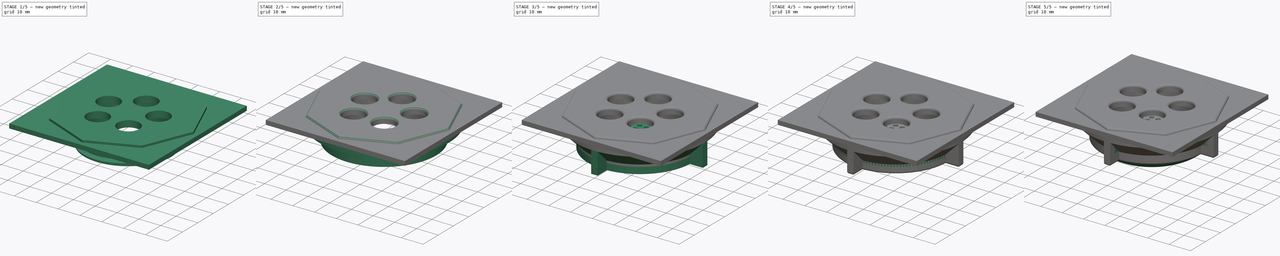
[diagram: build sequence overview — one tinted view per stage of 5, left to right]
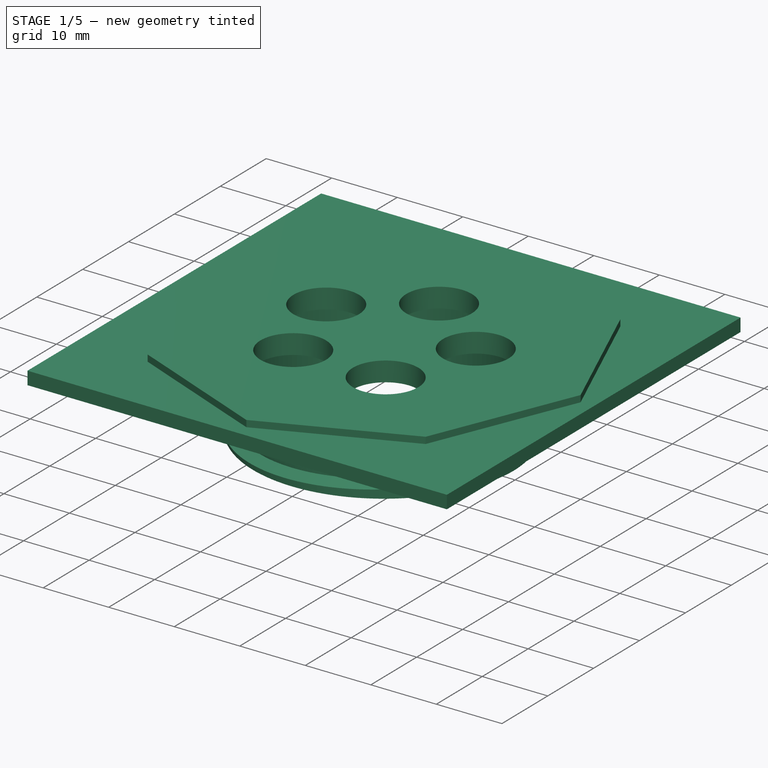
[diagram: stage 1 of 5 — iso view after this stage's code; geometry added in this stage tinted green]
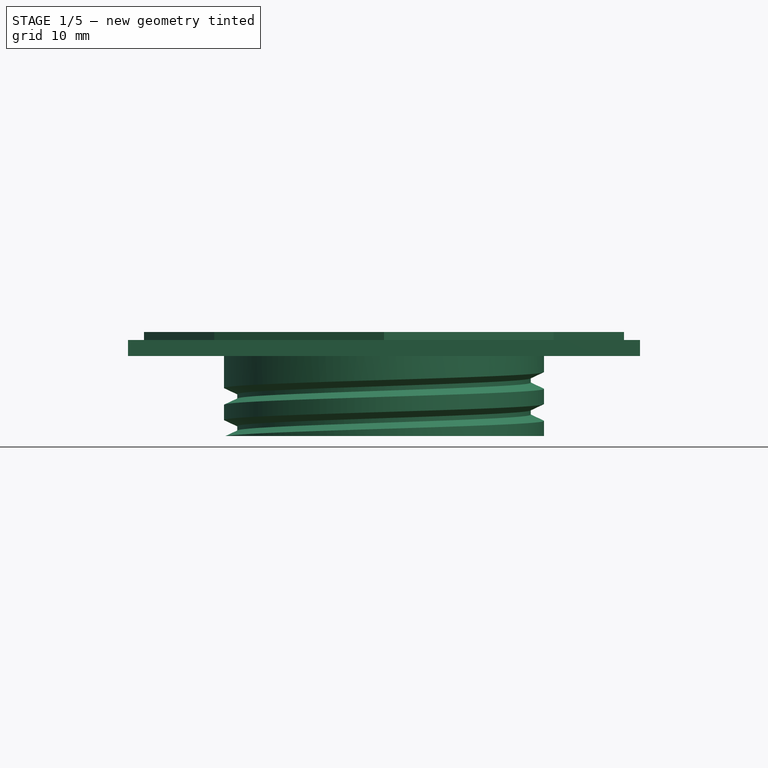
[diagram: stage 1 of 5 — front view after this stage's code; geometry added in this stage tinted green]
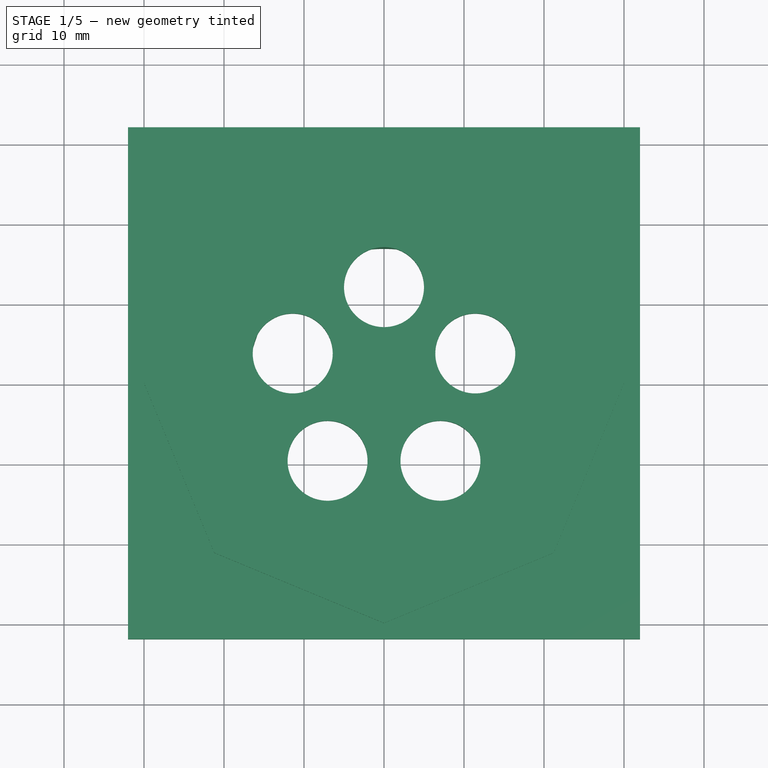
[diagram: stage 1 of 5 — top view after this stage's code; geometry added in this stage tinted green]
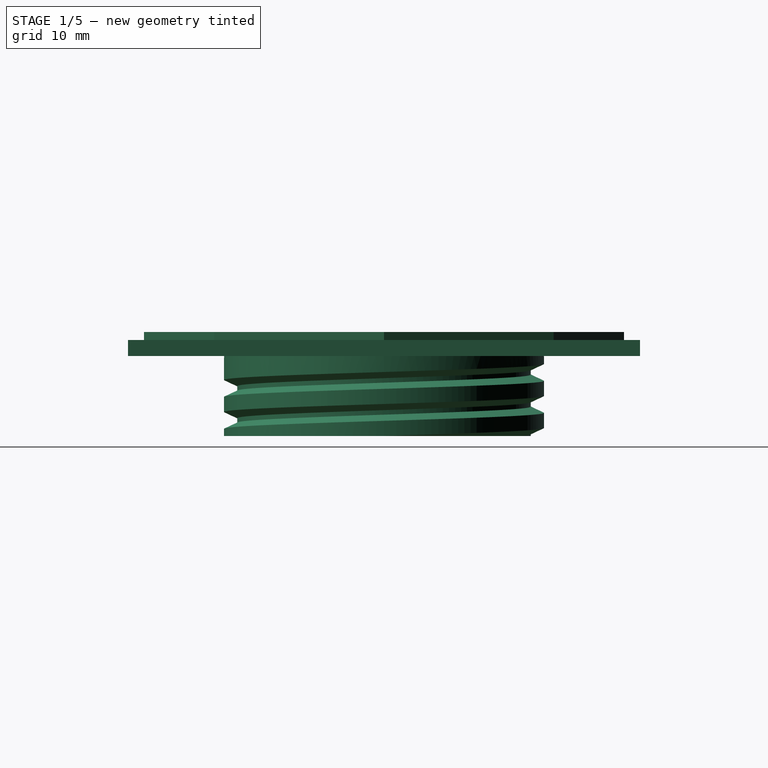
[diagram: stage 1 of 5 — right view after this stage's code; geometry added in this stage tinted green]
FCSTD DOCUMENT  (FreeCAD 2023.131R26244 +5365 (Git))
Label: Still Air Box Equalization Valve
License: All rights reserved
LicenseURL: http://en.wikipedia.org/wiki/All_rights_reserved
objects: Sketcher::SketchObject×17, PartDesign::Pad×10, PartDesign::Fillet×6, PartDesign::PolarPattern×5, PartDesign::Body×4, PartDesign::Pocket×3, PartDesign::AdditiveHelix×2, Spreadsheet::Sheet×1, PartDesign::SubtractiveHelix×1, PartDesign::Revolution×1, PartDesign::Chamfer×1
note: 125 computed .brp shape members not serialized (recipe doc carries the construction recipe); baked Part::Feature solids carry a one-line shape summary decoded from their .brp

FEATURE [Spreadsheet::Sheet] Spreadsheet  label="Parameters"
  PythonMode = false
  ShowCells = 0
  TreeRank = 1
  cells = A1=Thickness; B1(thickness)=3; A2=Hole Size; B2(hole_diameter)=40; A3=Flange Width; B3(flange_width)=10; A4=Outer Diameter; B4(outer_diameter)==hole_diameter + 2 * flange_width; A5=Filter Patch Hole Size; B5(filter_patch_hole_diameter)=10; A6=Filter Patch Hole Count; B6(filter_patch_hole_count)=5; A7=Overlap; B7(overlap)=10; A9=Filter Depression Diameter; B9(filter_depression_diameter)=50; A10=Filter Depression Depth; B10(filter_depression_depth)=0.25; A12=Thread Pitch; B12(thread_pitch)=4; A13=Thread Depth; B13(thread_depth)=1.5; A14=Thread Angle; B14(thread_angle)=25; A16=Grid Spacing; B16(grid_space)=3; A17=Hole Size; B17(hole_size)=2
FEATURE [Sketcher::SketchObject] Sketch
  ArcFitTolerance = 1e-06
  AttachmentSupport = -> [XY_Plane]
  ExternalBSplineMaxDegree = 5
  ExternalBSplineTolerance = 0.0001
  FullyConstrained = true
  InternalTolerance = 1e-06
  InvalidShape = false
  MakeInternals = false
  MapMode = 5
  Support = -> [XY_Plane]
  TreeRank = 22
  ValidateShape = true
  expr: Constraints[25] = <<Parameters>>.outer_diameter
  sketch-geometry (9):
    g0: LineSegment StartX=0 StartY=30 StartZ=0 EndX=-21.2132 EndY=21.2132 EndZ=0
    g1: LineSegment StartX=-21.2132 StartY=21.2132 StartZ=0 EndX=-30 EndY=0 EndZ=0
    g2: LineSegment StartX=-30 StartY=1.5e-15 StartZ=0 EndX=-21.2132 EndY=-21.2132 EndZ=0
    g3: LineSegment StartX=-21.2132 StartY=-21.2132 StartZ=0 EndX=0 EndY=-30 EndZ=0
    g4: LineSegment StartX=7e-16 StartY=-30 StartZ=0 EndX=21.2132 EndY=-21.2132 EndZ=0
    g5: LineSegment StartX=21.2132 StartY=-21.2132 StartZ=0 EndX=30 EndY=0 EndZ=0
    g6: LineSegment StartX=30 StartY=-1e-16 StartZ=0 EndX=21.2132 EndY=21.2132 EndZ=0
    g7: LineSegment StartX=21.2132 StartY=21.2132 StartZ=0 EndX=0 EndY=30 EndZ=0
    g8: Circle [constr] CenterX=0 CenterY=0 CenterZ=0 NormalX=0 NormalY=0 NormalZ=1 AngleXU=0 Radius=30
  constraints (20):
    c: Coincident(g0,g1)
    c: Coincident(g1,g2)
    c: Coincident(g2,g3)
    c: Coincident(g3,g4)
    c: Coincident(g4,g5)
    c: Coincident(g5,g6)
    c: Coincident(g6,g7)
    c: Coincident(g7,g0)
    c: Equal(g0, g1-g7) x7
    c: PointOnObject(g0,g8)
    c: PointOnObject(g1,g8)
    c: PointOnObject(g2,g8)
    c: PointOnObject(g3,g8)
    c: PointOnObject(g4,g8)
    c: PointOnObject(g5,g8)
    c: PointOnObject(g6,g8)
    c: PointOnObject(g7,g8)
    c: Coincident(g8,g-1)
    c: PointOnObject(g7,g-2)
    c: Diameter(g8) = 60
FEATURE [PartDesign::Pad] Pad
  AddSubType = 0
  AlongSketchNormal = false
  AutoTaperInnerAngle = true
  CheckUpToFaceLimits = true
  ClaimChildren = false
  Direction = (0,0,1)
  Fit = 0
  FitJoin = 0
  InnerFit = 0
  InnerFitJoin = 0
  InvalidShape = false
  Length = 3
  Length2 = 100
  Linearize = true
  NewSolid = false
  Profile = -> Sketch
  Suppress = false
  TaperInnerAngle = 0
  TaperInnerAngleRev = 0
  TreeRank = 23
  Type = 0
  ValidateShape = true
  _ProfileBasedVersion = 1
  expr: Length = <<Parameters>>.thickness
FEATURE [Sketcher::SketchObject] Sketch001
  ArcFitTolerance = 1e-06
  AttachmentSupport = -> [XY_Plane]
  ExternalBSplineMaxDegree = 5
  ExternalBSplineTolerance = 0.0001
  FullyConstrained = true
  InternalTolerance = 1e-06
  InvalidShape = false
  MakeInternals = false
  MapMode = 5
  Support = -> [XY_Plane]
  TreeRank = 24
  ValidateShape = true
  expr: Constraints[1] = <<Parameters>>.hole_diameter - 2 * <<Parameters>>.thickness
  expr: Constraints[3] = <<Parameters>>.hole_diameter
  sketch-geometry (2):
    g0: Circle CenterX=0 CenterY=0 CenterZ=0 NormalX=0 NormalY=0 NormalZ=1 AngleXU=0 Radius=17
    g1: Circle CenterX=0 CenterY=0 CenterZ=0 NormalX=0 NormalY=0 NormalZ=1 AngleXU=0 Radius=20
  constraints (4):
    c: Coincident(g0,g-1)
    c: Diameter(g0) = 34
    c: Coincident(g1,g0)
    c: Diameter(g1) = 40
FEATURE [PartDesign::Pad] Pad001
  AddSubType = 0
  AlongSketchNormal = false
  AutoTaperInnerAngle = true
  BaseFeature = -> Pad
  CheckUpToFaceLimits = true
  ClaimChildren = false
  Direction = (0,0,1)
  Fit = 0
  FitJoin = 0
  InnerFit = 0
  InnerFitJoin = 0
  InvalidShape = false
  Length = 10
  Length2 = 100
  Linearize = true
  NewSolid = false
  Profile = -> Sketch001
  Reversed = true
  Suppress = false
  TaperInnerAngle = 0
  TaperInnerAngleRev = 0
  TreeRank = 25
  Type = 0
  ValidateShape = true
  _ProfileBasedVersion = 1
  expr: Length = <<Parameters>>.overlap
FEATURE [Sketcher::SketchObject] Sketch002
  ArcFitTolerance = 1e-06
  AttachmentSupport = -> [XZ_Plane]
  ExternalBSplineMaxDegree = 5
  ExternalBSplineTolerance = 0.0001
  FullyConstrained = true
  InternalTolerance = 1e-06
  InvalidShape = false
  MakeInternals = false
  MapMode = 5
  Placement = pos=(0,0,0) rot=(1,0,0;1.5708rad)
  Support = -> [XZ_Plane]
  TreeRank = 26
  ValidateShape = true
  expr: Constraints[10] = <<Parameters>>.hole_diameter / 2
  expr: Constraints[7] = <<Parameters>>.thread_pitch / 1.9
  expr: Constraints[8] = <<Parameters>>.thread_depth * 1.1
  expr: Constraints[9] = 90 - <<Parameters>>.thread_angle
  sketch-geometry (4):
    g0: LineSegment StartX=-20 StartY=0 StartZ=0 EndX=-20 EndY=-2.10526 EndZ=0
    g1: LineSegment StartX=-20 StartY=0 StartZ=0 EndX=-18.35 EndY=-0.769408 EndZ=0
    g2: LineSegment StartX=-20 StartY=-2.10526 StartZ=0 EndX=-18.35 EndY=-1.33586 EndZ=0
    g3: LineSegment StartX=-18.35 StartY=-1.33586 StartZ=0 EndX=-18.35 EndY=-0.769408 EndZ=0
  constraints (12):
    c: Vertical(g0)
    c: Coincident(g1,g0)
    c: Coincident(g2,g0)
    c: Coincident(g3,g2)
    c: Coincident(g3,g1)
    c: Vertical(g3)
    c: Equal(g1,g2)
    c: DistanceY(g0,g0) = 2.10526
    c: DistanceX(g0,g1) = 1.65
    c: Angle(g0,g1) = 1.13446
    c: DistanceX(g0,g-1) = 20
    c: DistanceY(g0,g-1) = 0
FEATURE [PartDesign::SubtractiveHelix] Helix
  AddSubType = 1
  Angle = 0
  Axis = (0,2e-16,1)
  Base = (0,0,0)
  BaseFeature = -> Pad001
  ClaimChildren = false
  Fit = 0
  FitJoin = 0
  Growth = 0
  HasBeenEdited = true
  Height = 10
  InnerFit = 0
  InnerFitJoin = 0
  InvalidShape = false
  LeftHanded = false
  Linearize = true
  Mode = 0
  NewSolid = false
  Outside = false
  Pitch = 4
  Profile = -> Sketch002
  ReferenceAxis = -> Sketch002 [V_Axis]
  Reversed = true
  Suppress = false
  TreeRank = 27
  Turns = 2.5
  ValidateShape = true
  _ProfileBasedVersion = 1
  expr: Height = <<Parameters>>.overlap
  expr: Pitch = <<Parameters>>.thread_pitch
FEATURE [Sketcher::SketchObject] Sketch003
  ArcFitTolerance = 1e-06
  AttachmentSupport = -> [XY_Plane]
  ExternalBSplineMaxDegree = 5
  ExternalBSplineTolerance = 0.0001
  FullyConstrained = true
  InternalTolerance = 1e-06
  InvalidShape = false
  MakeInternals = false
  MapMode = 5
  Support = -> [XY_Plane]
  TreeRank = 28
  ValidateShape = true
  expr: Constraints[1] = <<Parameters>>.filter_patch_hole_diameter
  expr: Constraints[4] = <<Parameters>>.hole_diameter / 2 - <<Parameters>>.thickness
  sketch-geometry (2):
    g0: Circle CenterX=0 CenterY=12 CenterZ=0 NormalX=0 NormalY=0 NormalZ=1 AngleXU=0 Radius=5
    g1: GeomPoint [constr] X=0 Y=17 Z=0
  constraints (5):
    c: PointOnObject(g0,g-2)
    c: Diameter(g0) = 10
    c: PointOnObject(g1,g0)
    c: PointOnObject(g1,g-2)
    c: DistanceY(g-1,g1) = 17
FEATURE [PartDesign::Pocket] Pocket
  AddSubType = 1
  AutoTaperInnerAngle = true
  BaseFeature = -> Helix
  CheckUpToFaceLimits = true
  ClaimChildren = false
  Fit = 0
  FitJoin = 0
  InnerFit = 0
  InnerFitJoin = 0
  InvalidShape = false
  Length = 100
  Length2 = 100
  Linearize = true
  NewSolid = false
  Profile = -> Sketch003
  Suppress = false
  TaperInnerAngle = 0
  TaperInnerAngleRev = 0
  TreeRank = 29
  Type = 4
  ValidateShape = true
  _ProfileBasedVersion = 1
  _Version = 1
FEATURE [PartDesign::PolarPattern] PolarPattern
  AddSubType = 0
  Angle = 360
  Axis = -> Sketch003 [N_Axis]
  BaseFeature = -> Pocket
  CopyShape = false
  InvalidShape = false
  NewSolid = false
  Occurrences = 5
  OriginalSubs = -> [Pocket]
  Originals = -> [Pocket]
  ParallelTransform = true
  SubTransform = true
  Suppress = false
  TreeRank = 30
  ValidateShape = true
  _Version = 3
  expr: Occurrences = <<Parameters>>.filter_patch_hole_count
FEATURE [PartDesign::Body] Body  label="A"
  AutoGroupSolids = false
  ClaimAllChildren = false
  ExportMode = 0
  Group = -> [Sketch,Pad,Sketch001,Pad001,Sketch002,Helix,Sketch003,Pocket,PolarPattern,Fillet,Fillet006]
  InvalidShape = false
  Origin = -> Origin
  Tip = -> Fillet006
  TreeRank = 11
  ValidateShape = true
  _ExportChildren = -> [Pad,Pad001,Helix,Pocket,PolarPattern,Fillet,Fillet006]
  _GroupVersion = 1
FEATURE [Sketcher::SketchObject] Sketch016
  ArcFitTolerance = 1e-06
  AttachmentSupport = -> [XY_Plane003]
  ExternalBSplineMaxDegree = 5
  ExternalBSplineTolerance = 0.0001
  FullyConstrained = true
  InternalTolerance = 1e-06
  InvalidShape = false
  MakeInternals = false
  MapMode = 5
  Support = -> [XY_Plane003]
  TreeRank = 83
  ValidateShape = true
  expr: Constraints[1] = <<Parameters>>.hole_diameter + 4
  sketch-geometry (7):
    g0: Circle CenterX=0 CenterY=0 CenterZ=0 NormalX=0 NormalY=0 NormalZ=1 AngleXU=0 Radius=22
    g1: LineSegment StartX=32 StartY=-32 StartZ=0 EndX=32 EndY=32 EndZ=0
    g2: LineSegment StartX=32 StartY=32 StartZ=0 EndX=-32 EndY=32 EndZ=0
    g3: LineSegment StartX=-32 StartY=32 StartZ=0 EndX=-32 EndY=-32 EndZ=0
    g4: LineSegment StartX=-32 StartY=-32 StartZ=0 EndX=32 EndY=-32 EndZ=0
    g5: GeomPoint [constr] X=0 Y=0 Z=0
    g6: GeomPoint [constr] X=0 Y=22 Z=0
  constraints (16):
    c: Coincident(g0,g-1)
    c: Diameter(g0) = 44
    c: Coincident(g1,g2)
    c: Coincident(g2,g3)
    c: Coincident(g3,g4)
    c: Coincident(g4,g1)
    c: Horizontal(g2)
    c: Horizontal(g4)
    c: Vertical(g1)
    c: Vertical(g3)
    c: Symmetric(g2,g1,g5)
    c: Coincident(g5,g0)
    c: Equal(g2,g1)
    c: PointOnObject(g6,g0)
    c: PointOnObject(g6,g-2)
    c: DistanceY(g6,g1) = 10
FEATURE [PartDesign::Pad] Pad009
  AddSubType = 0
  AlongSketchNormal = false
  AutoTaperInnerAngle = true
  CheckUpToFaceLimits = true
  ClaimChildren = false
  Direction = (0,0,1)
  Fit = 0
  FitJoin = 0
  InnerFit = 0
  InnerFitJoin = 0
  InvalidShape = false
  Length = 2
  Length2 = 100
  Linearize = true
  NewSolid = false
  Profile = -> Sketch016
  Suppress = false
  TaperInnerAngle = 0
  TaperInnerAngleRev = 0
  TreeRank = 84
  Type = 0
  ValidateShape = true
  _ProfileBasedVersion = 1
FEATURE [PartDesign::Body] Body003  label="Template"
  AutoGroupSolids = false
  ClaimAllChildren = false
  ExportMode = 0
  Group = -> [Sketch016,Pad009]
  InvalidShape = false
  Origin = -> Origin003
  Tip = -> Pad009
  TreeRank = 82
  ValidateShape = true
  _ExportChildren = -> [Pad009]
  _GroupVersion = 1
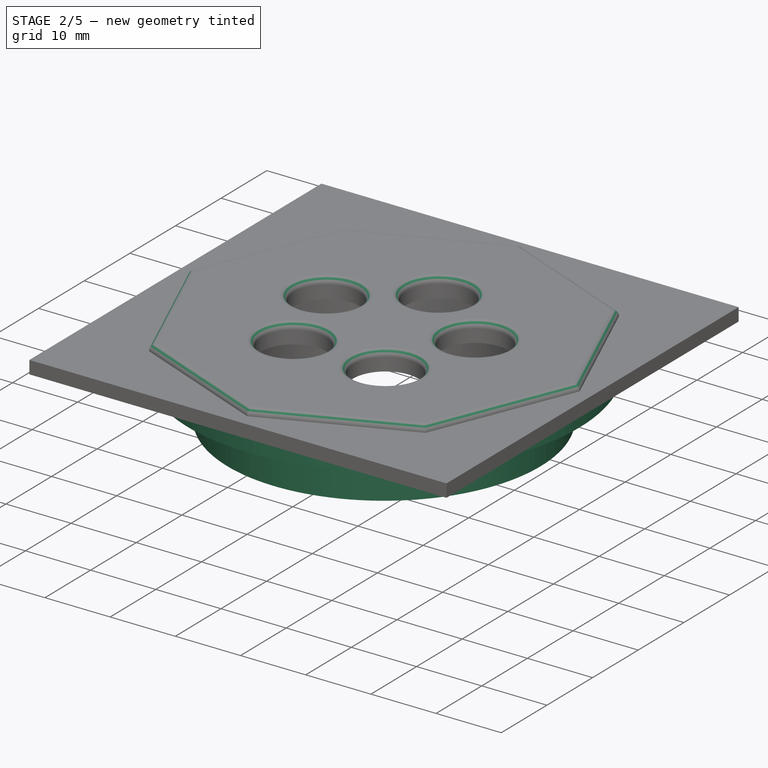
[diagram: stage 2 of 5 — iso view after this stage's code; geometry added in this stage tinted green]
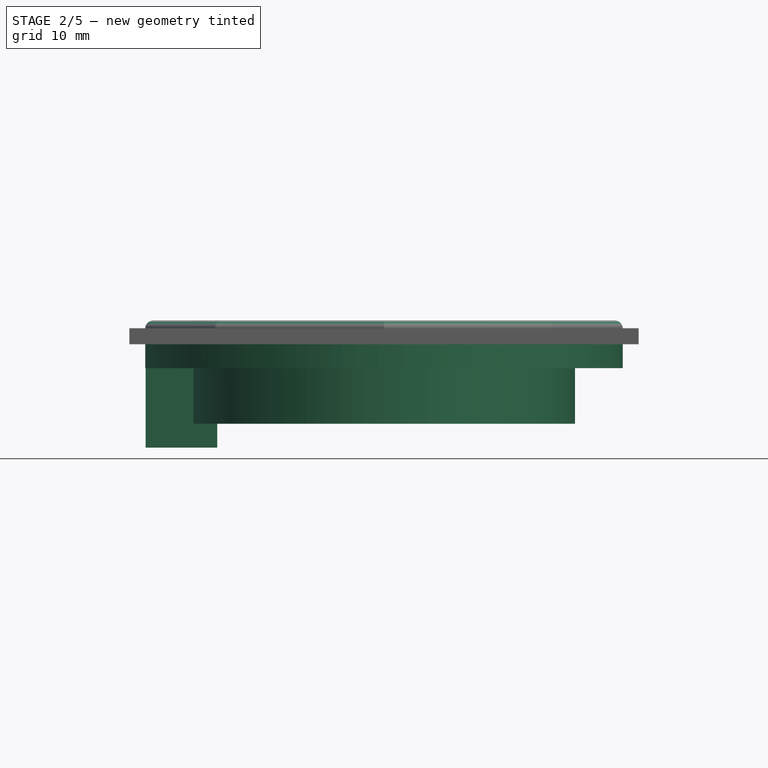
[diagram: stage 2 of 5 — front view after this stage's code; geometry added in this stage tinted green]
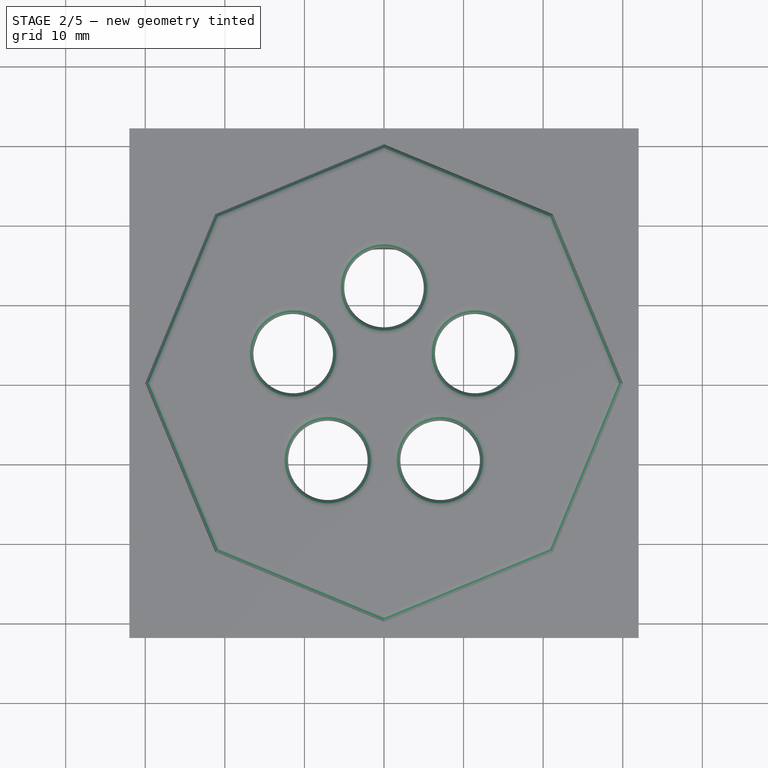
[diagram: stage 2 of 5 — top view after this stage's code; geometry added in this stage tinted green]
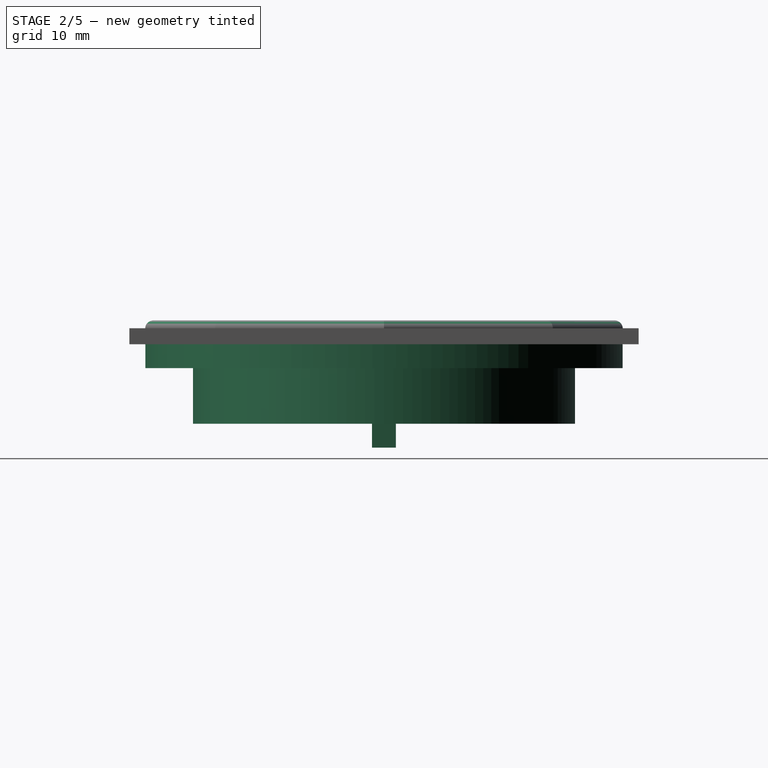
[diagram: stage 2 of 5 — right view after this stage's code; geometry added in this stage tinted green]
FEATURE [PartDesign::Fillet] Fillet
  AddSubType = 0
  Base = -> PolarPattern [Edge22,Edge20,Edge18,Edge7,Edge4,Edge10,Edge19,Edge21,Edge9,Edge12,Edge3,Edge6,Edge15,Edge11,Edge13,Edge92]
  BaseFeature = -> PolarPattern
  InvalidShape = false
  NewSolid = false
  Radius = 1
  SupportTransform = false
  Suppress = false
  TreeRank = 31
  ValidateShape = true
FEATURE [PartDesign::Body] Body001  label="B - Curved"
  AutoGroupSolids = false
  ClaimAllChildren = false
  ExportMode = 0
  Group = -> [Sketch004,Pad002,Sketch005,Pad003,Sketch006,Helix001,Sketch007,Pad004,PolarPattern001,Fillet002,Sketch008,Revolution,Sketch009,Pocket001,PolarPattern002,Fillet003]
  InvalidShape = false
  Origin = -> Origin001
  Tip = -> Fillet003
  TreeRank = 21
  ValidateShape = true
  _ExportChildren = -> [Pad002,Pad003,Helix001,Pad004,PolarPattern001,Fillet002,Revolution,Pocket001,PolarPattern002,Fillet003]
  _GroupVersion = 1
FEATURE [Sketcher::SketchObject] Sketch010
  ArcFitTolerance = 1e-06
  ExternalBSplineMaxDegree = 5
  ExternalBSplineTolerance = 0.0001
  FullyConstrained = false
  InternalTolerance = 1e-06
  InvalidShape = false
  MakeInternals = false
  MapMode = 5
  TreeRank = 33
  ValidateShape = true
  expr: Constraints[0] = <<Parameters>>.outer_diameter
  expr: Constraints[2] = <<Parameters>>.hole_diameter + 2
  sketch-geometry (2):
    g0: Circle CenterX=0 CenterY=0 CenterZ=0 NormalX=0 NormalY=0 NormalZ=1 AngleXU=0 Radius=30
    g1: Circle CenterX=0 CenterY=0 CenterZ=0 NormalX=0 NormalY=0 NormalZ=1 AngleXU=0 Radius=21
  constraints (3):
    c: Diameter(g0) = 60
    c: Coincident(g1,g0)
    c: Diameter(g1) = 42
FEATURE [PartDesign::Pad] Pad005
  AddSubType = 0
  AlongSketchNormal = false
  AutoTaperInnerAngle = true
  CheckUpToFaceLimits = true
  ClaimChildren = false
  Direction = (0,0,1)
  Fit = 0
  FitJoin = 0
  InnerFit = 0
  InnerFitJoin = 0
  InvalidShape = false
  Length = 3
  Length2 = 100
  Linearize = true
  NewSolid = false
  Profile = -> Sketch010
  Reversed = true
  Suppress = false
  TaperInnerAngle = 0
  TaperInnerAngleRev = 0
  TreeRank = 34
  Type = 0
  ValidateShape = true
  _ProfileBasedVersion = 1
  expr: Length = <<Parameters>>.thickness
FEATURE [Sketcher::SketchObject] Sketch011
  ArcFitTolerance = 1e-06
  ExternalBSplineMaxDegree = 5
  ExternalBSplineTolerance = 0.0001
  FullyConstrained = true
  InternalTolerance = 1e-06
  InvalidShape = false
  MakeInternals = false
  MapMode = 5
  TreeRank = 35
  ValidateShape = true
  expr: Constraints[2] = <<Parameters>>.hole_diameter + 2
  expr: Constraints[3] = <<Parameters>>.hole_diameter + 2 + <<Parameters>>.thickness * 2
  sketch-geometry (2):
    g0: Circle CenterX=0 CenterY=0 CenterZ=0 NormalX=0 NormalY=0 NormalZ=1 AngleXU=0 Radius=24
    g1: Circle CenterX=0 CenterY=0 CenterZ=0 NormalX=0 NormalY=0 NormalZ=1 AngleXU=0 Radius=21
  constraints (4):
    c: Coincident(g0,g-1)
    c: Coincident(g1,g0)
    c: Diameter(g1) = 42
    c: Diameter(g0) = 48
FEATURE [PartDesign::Pad] Pad006
  AddSubType = 0
  AlongSketchNormal = false
  AutoTaperInnerAngle = true
  BaseFeature = -> Pad005
  CheckUpToFaceLimits = true
  ClaimChildren = false
  Direction = (0,0,1)
  Fit = 0
  FitJoin = 0
  InnerFit = 0
  InnerFitJoin = 0
  InvalidShape = false
  Length = 10
  Length2 = 100
  Linearize = true
  NewSolid = false
  Profile = -> Sketch011
  Reversed = true
  Suppress = false
  TaperInnerAngle = 0
  TaperInnerAngleRev = 0
  TreeRank = 36
  Type = 0
  ValidateShape = true
  _ProfileBasedVersion = 1
  expr: Length = <<Parameters>>.overlap
FEATURE [Sketcher::SketchObject] Sketch012
  ArcFitTolerance = 1e-06
  ExternalBSplineMaxDegree = 5
  ExternalBSplineTolerance = 0.0001
  FullyConstrained = true
  InternalTolerance = 1e-06
  InvalidShape = false
  MakeInternals = false
  MapMode = 5
  Placement = pos=(0,0,0) rot=(1,0,0;1.5708rad)
  TreeRank = 37
  ValidateShape = true
  expr: Constraints[10] = (<<Parameters>>.hole_diameter + 2) / 2
  expr: Constraints[7] = <<Parameters>>.thread_pitch / 2.1
  expr: Constraints[8] = <<Parameters>>.thread_depth
  expr: Constraints[9] = 90 - <<Parameters>>.thread_angle
  sketch-geometry (4):
    g0: LineSegment StartX=-21 StartY=0 StartZ=0 EndX=-21 EndY=-1.90476 EndZ=0
    g1: LineSegment StartX=-21 StartY=0 StartZ=0 EndX=-19.5 EndY=-0.699461 EndZ=0
    g2: LineSegment StartX=-21 StartY=-1.90476 StartZ=0 EndX=-19.5 EndY=-1.2053 EndZ=0
    g3: LineSegment StartX=-19.5 StartY=-1.2053 StartZ=0 EndX=-19.5 EndY=-0.699461 EndZ=0
  constraints (12):
    c: Vertical(g0)
    c: Coincident(g1,g0)
    c: Coincident(g2,g0)
    c: Coincident(g3,g2)
    c: Coincident(g3,g1)
    c: Vertical(g3)
    c: Equal(g1,g2)
    c: DistanceY(g0,g0) = 1.90476
    c: DistanceX(g0,g1) = 1.5
    c: Angle(g0,g1) = 1.13446
    c: DistanceX(g0,g-1) = 21
    c: DistanceY(g0,g-1) = 0
FEATURE [PartDesign::AdditiveHelix] Helix002
  AddSubType = 0
  Angle = 0
  Axis = (0,-2e-16,1)
  Base = (0,0,0)
  BaseFeature = -> Pad006
  ClaimChildren = false
  Fit = 0
  FitJoin = 0
  Growth = 0
  HasBeenEdited = true
  Height = 8
  InnerFit = 0
  InnerFitJoin = 0
  InvalidShape = false
  LeftHanded = false
  Linearize = true
  Mode = 0
  NewSolid = false
  Outside = false
  Pitch = 4
  Profile = -> Sketch012
  ReferenceAxis = -> Sketch012 [V_Axis]
  Reversed = true
  Suppress = false
  TreeRank = 38
  Turns = 2
  ValidateShape = true
  _ProfileBasedVersion = 1
  expr: Height = <<Parameters>>.overlap - <<Parameters>>.thread_pitch / 2
  expr: Pitch = <<Parameters>>.thread_pitch
FEATURE [Sketcher::SketchObject] Sketch013
  ArcFitTolerance = 1e-06
  ExternalBSplineMaxDegree = 5
  ExternalBSplineTolerance = 0.0001
  FullyConstrained = true
  InternalTolerance = 1e-06
  InvalidShape = false
  MakeInternals = false
  MapMode = 5
  TreeRank = 39
  ValidateShape = true
  expr: Constraints[17] = <<Parameters>>.thickness
  expr: Constraints[1] = <<Parameters>>.hole_diameter + 2
  expr: Constraints[3] = <<Parameters>>.outer_diameter
  sketch-geometry (6):
    g0: Circle [constr] CenterX=0 CenterY=0 CenterZ=0 NormalX=0 NormalY=0 NormalZ=1 AngleXU=0 Radius=21
    g1: Circle [constr] CenterX=0 CenterY=0 CenterZ=0 NormalX=0 NormalY=0 NormalZ=1 AngleXU=0 Radius=30
    g2: LineSegment StartX=-20.9464 StartY=1.5 StartZ=0 EndX=-29.9625 EndY=1.5 EndZ=0
    g3: LineSegment StartX=-20.9464 StartY=-1.5 StartZ=0 EndX=-29.9625 EndY=-1.5 EndZ=0
    g4: LineSegment StartX=-20.9464 StartY=1.5 StartZ=0 EndX=-20.9464 EndY=-1.5 EndZ=0
    g5: LineSegment StartX=-29.9625 StartY=1.5 StartZ=0 EndX=-29.9625 EndY=-1.5 EndZ=0
  constraints (18):
    c: Coincident(g0,g-1)
    c: Diameter(g0) = 42
    c: Coincident(g1,g0)
    c: Diameter(g1) = 60
    c: PointOnObject(g2,g0)
    c: PointOnObject(g2,g1)
    c: Horizontal(g2)
    c: PointOnObject(g3,g0)
    c: PointOnObject(g3,g1)
    c: Horizontal(g3)
    c: Equal(g2,g3)
    c: Symmetric(g3,g2,g-1)
    c: Coincident(g4,g2)
    c: Coincident(g4,g3)
    c: Vertical(g4)
    c: Coincident(g5,g2)
    c: Coincident(g5,g3)
    c: DistanceY(g3,g2) = 3
FEATURE [PartDesign::Pad] Pad007
  AddSubType = 0
  AlongSketchNormal = false
  AutoTaperInnerAngle = true
  BaseFeature = -> Helix002
  CheckUpToFaceLimits = true
  ClaimChildren = false
  Direction = (0,0,1)
  Fit = 0
  FitJoin = 0
  InnerFit = 0
  InnerFitJoin = 0
  InvalidShape = false
  Length = 13
  Length2 = 100
  Linearize = true
  NewSolid = false
  Profile = -> Sketch013
  Reversed = true
  Suppress = false
  TaperInnerAngle = 0
  TaperInnerAngleRev = 0
  TreeRank = 40
  Type = 0
  ValidateShape = true
  _ProfileBasedVersion = 1
  expr: Length = <<Parameters>>.overlap + <<Parameters>>.thickness
FEATURE [PartDesign::Body] Body002  label="B - Flat"
  AutoGroupSolids = false
  ClaimAllChildren = false
  ExportMode = 0
  FixShape = 1
  Group = -> [Sketch010,Pad005,Sketch011,Pad006,Sketch012,Helix002,Sketch013,Pad007,Pad008,PolarPattern003,Sketch014,Pocket002,Sketch015,PolarPattern004,Chamfer,Fillet004,Fillet005]
  InvalidShape = false
  Origin = -> Origin002
  Tip = -> Fillet005
  TreeRank = 50
  ValidateShape = true
  _ExportChildren = -> [Pad005,Pad006,Helix002,Pad007,Pad008,PolarPattern003,Pocket002,PolarPattern004,Chamfer,Fillet004,Fillet005]
  _GroupVersion = 1
FEATURE [PartDesign::Fillet] Fillet006
  AddSubType = 0
  Base = -> Fillet [Edge41,Edge39,Edge40,Edge42,Edge43]
  BaseFeature = -> Fillet
  InvalidShape = false
  NewSolid = false
  Radius = 1
  SupportTransform = false
  Suppress = false
  TreeRank = 72
  ValidateShape = true
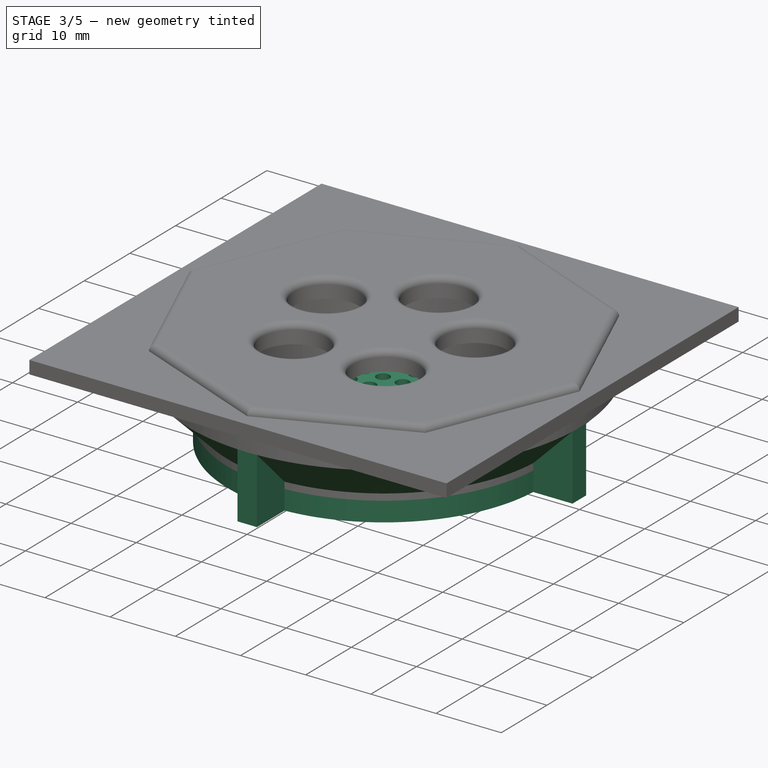
[diagram: stage 3 of 5 — iso view after this stage's code; geometry added in this stage tinted green]
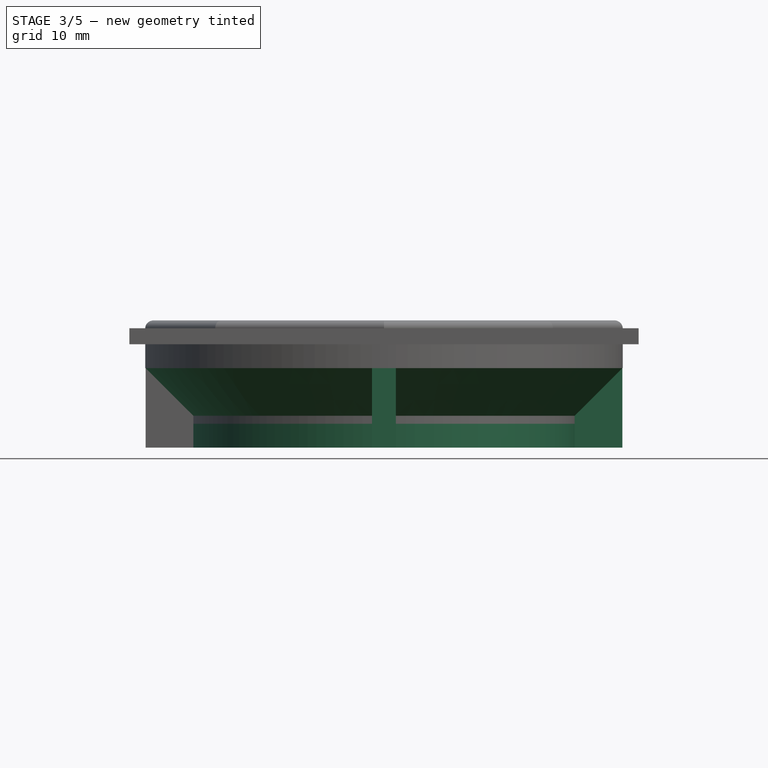
[diagram: stage 3 of 5 — front view after this stage's code; geometry added in this stage tinted green]
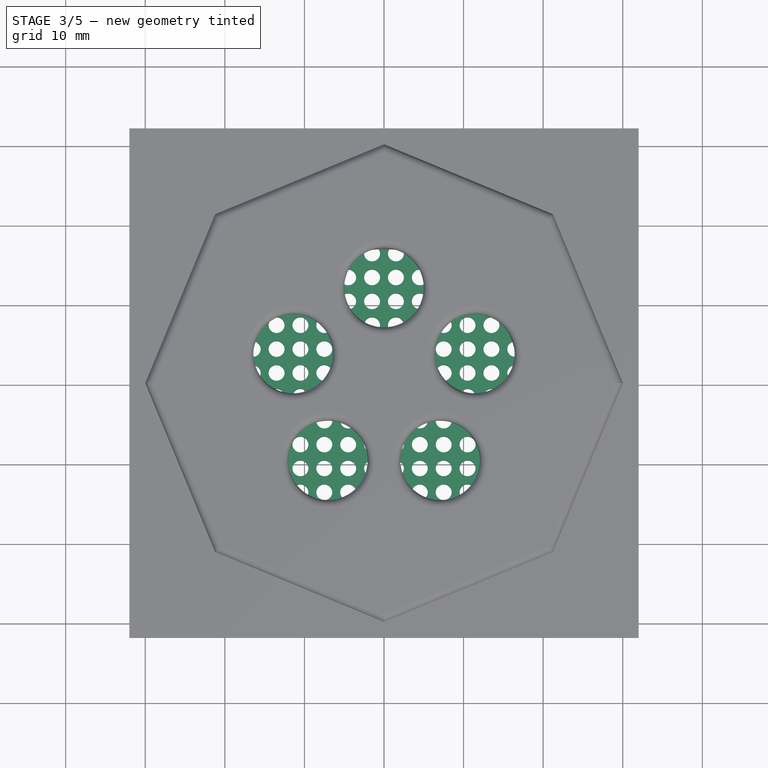
[diagram: stage 3 of 5 — top view after this stage's code; geometry added in this stage tinted green]
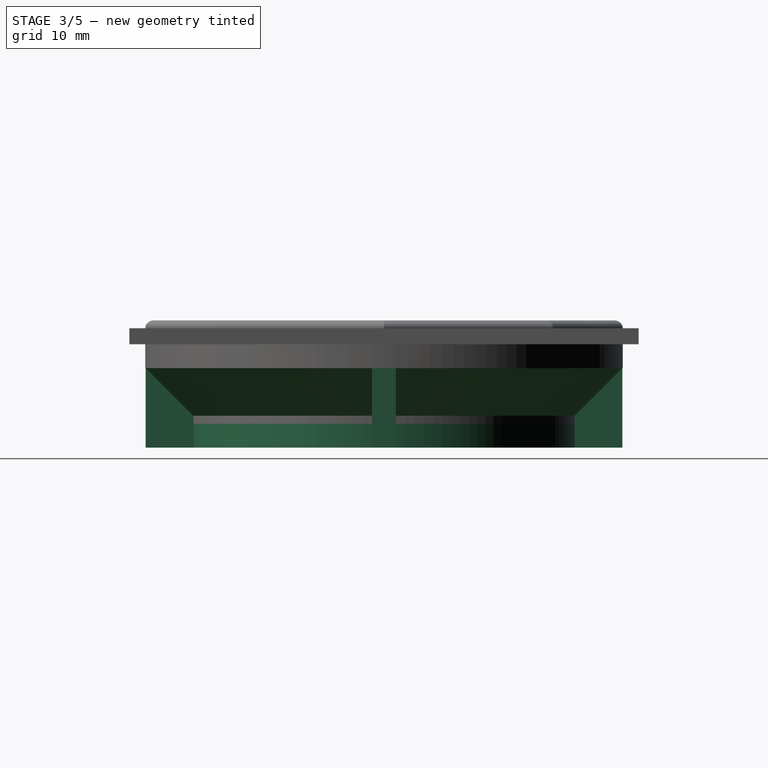
[diagram: stage 3 of 5 — right view after this stage's code; geometry added in this stage tinted green]
FEATURE [Sketcher::SketchObject] Sketch014
  ArcFitTolerance = 1e-06
  AttachmentOffset = pos=(0,0,-10) rot=(0,0,1;0rad)
  AttachmentSupport = -> [XY_Plane002]
  ExternalBSplineMaxDegree = 5
  ExternalBSplineTolerance = 0.0001
  FullyConstrained = true
  InternalTolerance = 1e-06
  InvalidShape = false
  MakeInternals = false
  MapMode = 5
  Placement = pos=(0,0,-10) rot=(0,0,1;0rad)
  Support = -> [XY_Plane002]
  TreeRank = 51
  ValidateShape = true
  expr: AttachmentOffset.Base.z = -<<Parameters>>.overlap
  expr: Constraints[10] = <<Parameters>>.grid_space
  expr: Constraints[11] = <<Parameters>>.grid_space
  expr: Constraints[12] = <<Parameters>>.grid_space
  expr: Constraints[137] = <<Parameters>>.hole_size
  expr: Constraints[13] = <<Parameters>>.grid_space
  expr: Constraints[16] = <<Parameters>>.grid_space
  expr: Constraints[17] = <<Parameters>>.grid_space
  expr: Constraints[1] = <<Parameters>>.hole_diameter + 2
  expr: Constraints[26] = <<Parameters>>.grid_space / 2
  expr: Constraints[38] = <<Parameters>>.grid_space
  expr: Constraints[39] = <<Parameters>>.grid_space
  expr: Constraints[40] = <<Parameters>>.grid_space
  expr: Constraints[44] = <<Parameters>>.grid_space
  expr: Constraints[45] = <<Parameters>>.grid_space
  expr: Constraints[46] = <<Parameters>>.grid_space
  expr: Constraints[48] = <<Parameters>>.grid_space
  expr: Constraints[4] = <<Parameters>>.grid_space
  expr: Constraints[5] = <<Parameters>>.grid_space / 2
  sketch-geometry (90):
    g0: Circle [constr] CenterX=0 CenterY=0 CenterZ=0 NormalX=0 NormalY=0 NormalZ=1 AngleXU=0 Radius=21
    g1: LineSegment [constr] StartX=-22.5 StartY=1.5 StartZ=0 EndX=-1.5 EndY=1.5 EndZ=0
    g2: LineSegment [constr] StartX=-22.5 StartY=4.5 StartZ=0 EndX=-1.5 EndY=4.5 EndZ=0
    g3: LineSegment [constr] StartX=-22.5 StartY=7.5 StartZ=0 EndX=-1.5 EndY=7.5 EndZ=0
    g4: LineSegment [constr] StartX=-22.5 StartY=10.5 StartZ=0 EndX=-1.5 EndY=10.5 EndZ=0
    g5: LineSegment [constr] StartX=-22.5 StartY=13.5 StartZ=0 EndX=-1.5 EndY=13.5 EndZ=0
    g6: LineSegment [constr] StartX=-22.5 StartY=16.5 StartZ=0 EndX=-1.5 EndY=16.5 EndZ=0
    g7: LineSegment [constr] StartX=-22.5 StartY=19.5 StartZ=0 EndX=-1.5 EndY=19.5 EndZ=0
    g8: LineSegment [constr] StartX=-22.5 StartY=22.5 StartZ=0 EndX=-1.5 EndY=22.5 EndZ=0
    g9: LineSegment [constr] StartX=-1.5 StartY=22.5 StartZ=0 EndX=-1.5 EndY=1.5 EndZ=0
    g10: LineSegment [constr] StartX=-4.5 StartY=22.5 StartZ=0 EndX=-4.5 EndY=1.5 EndZ=0
    g11: LineSegment [constr] StartX=-7.5 StartY=22.5 StartZ=0 EndX=-7.5 EndY=1.5 EndZ=0
    g12: LineSegment [constr] StartX=-10.5 StartY=22.5 StartZ=0 EndX=-10.5 EndY=1.5 EndZ=0
    g13: LineSegment [constr] StartX=-13.5 StartY=22.5 StartZ=0 EndX=-13.5 EndY=1.5 EndZ=0
    g14: LineSegment [constr] StartX=-16.5 StartY=22.5 StartZ=0 EndX=-16.5 EndY=1.5 EndZ=0
    g15: LineSegment [constr] StartX=-19.5 StartY=22.5 StartZ=0 EndX=-19.5 EndY=1.5 EndZ=0
    g16: LineSegment [constr] StartX=-22.5 StartY=22.5 StartZ=0 EndX=-22.5 EndY=1.5 EndZ=0
    g17: GeomPoint [constr] X=-19.5 Y=19.5 Z=0
    g18: GeomPoint [constr] X=-19.5 Y=16.5 Z=0
    g19: GeomPoint [constr] X=-19.5 Y=13.5 Z=0
    g20: GeomPoint [constr] X=-19.5 Y=10.5 Z=0
    g21: GeomPoint [constr] X=-19.5 Y=7.5 Z=0
    g22: GeomPoint [constr] X=-19.5 Y=4.5 Z=0
    g23: GeomPoint [constr] X=-16.5 Y=19.5 Z=0
    g24: GeomPoint [constr] X=-16.5 Y=16.5 Z=0
    g25: GeomPoint [constr] X=-16.5 Y=13.5 Z=0
    g26: GeomPoint [constr] X=-16.5 Y=10.5 Z=0
    g27: GeomPoint [constr] X=-16.5 Y=7.5 Z=0
    g28: GeomPoint [constr] X=-16.5 Y=4.5 Z=0
    g29: GeomPoint [constr] X=-13.5 Y=19.5 Z=0
    g30: GeomPoint [constr] X=-13.5 Y=16.5 Z=0
    g31: GeomPoint [constr] X=-13.5 Y=13.5 Z=0
    g32: GeomPoint [constr] X=-13.5 Y=10.5 Z=0
    g33: GeomPoint [constr] X=-13.5 Y=7.5 Z=0
    g34: GeomPoint [constr] X=-13.5 Y=4.5 Z=0
    g35: GeomPoint [constr] X=-10.5 Y=19.5 Z=0
    g36: GeomPoint [constr] X=-10.5 Y=16.5 Z=0
    g37: GeomPoint [constr] X=-10.5 Y=13.5 Z=0
    g38: GeomPoint [constr] X=-10.5 Y=10.5 Z=0
    g39: GeomPoint [constr] X=-10.5 Y=7.5 Z=0
    g40: GeomPoint [constr] X=-10.5 Y=4.5 Z=0
    g41: GeomPoint [constr] X=-7.5 Y=19.5 Z=0
    g42: GeomPoint [constr] X=-7.5 Y=16.5 Z=0
    g43: GeomPoint [constr] X=-7.5 Y=13.5 Z=0
    g44: GeomPoint [constr] X=-7.5 Y=10.5 Z=0
    g45: GeomPoint [constr] X=-7.5 Y=7.5 Z=0
    g46: GeomPoint [constr] X=-7.5 Y=4.5 Z=0
    g47: GeomPoint [constr] X=-4.5 Y=19.5 Z=0
    g48: GeomPoint [constr] X=-4.5 Y=16.5 Z=0
    g49: GeomPoint [constr] X=-4.5 Y=13.5 Z=0
    g50: GeomPoint [constr] X=-4.5 Y=10.5 Z=0
    g51: GeomPoint [constr] X=-4.5 Y=7.5 Z=0
    g52: GeomPoint [constr] X=-4.5 Y=4.5 Z=0
    g53: Circle CenterX=-1.5 CenterY=1.5 CenterZ=0 NormalX=0 NormalY=0 NormalZ=1 AngleXU=0 Radius=1
    g54: Circle CenterX=-1.5 CenterY=4.5 CenterZ=0 NormalX=0 NormalY=0 NormalZ=1 AngleXU=0 Radius=1
    g55: Circle CenterX=-1.5 CenterY=7.5 CenterZ=0 NormalX=0 NormalY=0 NormalZ=1 AngleXU=0 Radius=1
    g56: Circle CenterX=-1.5 CenterY=10.5 CenterZ=0 NormalX=0 NormalY=0 NormalZ=1 AngleXU=0 Radius=1
    g57: Circle CenterX=-1.5 CenterY=13.5 CenterZ=0 NormalX=0 NormalY=0 NormalZ=1 AngleXU=0 Radius=1
    g58: Circle CenterX=-1.5 CenterY=16.5 CenterZ=0 NormalX=0 NormalY=0 NormalZ=1 AngleXU=0 Radius=1
    g59: Circle CenterX=-1.5 CenterY=19.5 CenterZ=0 NormalX=0 NormalY=0 NormalZ=1 AngleXU=0 Radius=1
    g60: Circle CenterX=-4.5 CenterY=1.5 CenterZ=0 NormalX=0 NormalY=0 NormalZ=1 AngleXU=0 Radius=1
    g61: Circle CenterX=-7.5 CenterY=1.5 CenterZ=0 NormalX=0 NormalY=0 NormalZ=1 AngleXU=0 Radius=1
    g62: Circle CenterX=-10.5 CenterY=1.5 CenterZ=0 NormalX=0 NormalY=0 NormalZ=1 AngleXU=0 Radius=1
    g63: Circle CenterX=-13.5 CenterY=1.5 CenterZ=0 NormalX=0 NormalY=0 NormalZ=1 AngleXU=0 Radius=1
    g64: Circle CenterX=-16.5 CenterY=1.5 CenterZ=0 NormalX=0 NormalY=0 NormalZ=1 AngleXU=0 Radius=1
    g65: Circle CenterX=-19.5 CenterY=1.5 CenterZ=0 NormalX=0 NormalY=0 NormalZ=1 AngleXU=0 Radius=1
    g66: Circle CenterX=-4.5 CenterY=4.5 CenterZ=0 NormalX=0 NormalY=0 NormalZ=1 AngleXU=0 Radius=1
    g67: Circle CenterX=-7.5 CenterY=7.5 CenterZ=0 NormalX=0 NormalY=0 NormalZ=1 AngleXU=0 Radius=1
    g68: Circle CenterX=-10.5 CenterY=10.5 CenterZ=0 NormalX=0 NormalY=0 NormalZ=1 AngleXU=0 Radius=1
    g69: Circle CenterX=-13.5 CenterY=13.5 CenterZ=0 NormalX=0 NormalY=0 NormalZ=1 AngleXU=0 Radius=1
    g70: Circle CenterX=-16.5 CenterY=10.5 CenterZ=0 NormalX=0 NormalY=0 NormalZ=1 AngleXU=0 Radius=1
    g71: Circle CenterX=-16.5 CenterY=7.5 CenterZ=0 NormalX=0 NormalY=0 NormalZ=1 AngleXU=0 Radius=1
    g72: Circle CenterX=-16.5 CenterY=4.5 CenterZ=0 NormalX=0 NormalY=0 NormalZ=1 AngleXU=0 Radius=1
    g73: Circle CenterX=-7.5 CenterY=4.5 CenterZ=0 NormalX=0 NormalY=0 NormalZ=1 AngleXU=0 Radius=1
    g74: Circle CenterX=-10.5 CenterY=4.5 CenterZ=0 NormalX=0 NormalY=0 NormalZ=1 AngleXU=0 Radius=1
    g75: Circle CenterX=-13.5 CenterY=4.5 CenterZ=0 NormalX=0 NormalY=0 NormalZ=1 AngleXU=0 Radius=1
    g76: Circle CenterX=-10.5 CenterY=7.5 CenterZ=0 NormalX=0 NormalY=0 NormalZ=1 AngleXU=0 Radius=1
    g77: Circle CenterX=-13.5 CenterY=7.5 CenterZ=0 NormalX=0 NormalY=0 NormalZ=1 AngleXU=0 Radius=1
    g78: Circle CenterX=-13.5 CenterY=10.5 CenterZ=0 NormalX=0 NormalY=0 NormalZ=1 AngleXU=0 Radius=1
    g79: Circle CenterX=-4.5 CenterY=7.5 CenterZ=0 NormalX=0 NormalY=0 NormalZ=1 AngleXU=0 Radius=1
    g80: Circle CenterX=-4.5 CenterY=10.5 CenterZ=0 NormalX=0 NormalY=0 NormalZ=1 AngleXU=0 Radius=1
    g81: Circle CenterX=-7.5 CenterY=10.5 CenterZ=0 NormalX=0 NormalY=0 NormalZ=1 AngleXU=0 Radius=1
    g82: Circle CenterX=-4.5 CenterY=13.5 CenterZ=0 NormalX=0 NormalY=0 NormalZ=1 AngleXU=0 Radius=1
    g83: Circle CenterX=-7.5 CenterY=13.5 CenterZ=0 NormalX=0 NormalY=0 NormalZ=1 AngleXU=0 Radius=1
    g84: Circle CenterX=-10.5 CenterY=13.5 CenterZ=0 NormalX=0 NormalY=0 NormalZ=1 AngleXU=0 Radius=1
    g85: Circle CenterX=-10.5 CenterY=16.5 CenterZ=0 NormalX=0 NormalY=0 NormalZ=1 AngleXU=0 Radius=1
    g86: Circle CenterX=-7.5 CenterY=16.5 CenterZ=0 NormalX=0 NormalY=0 NormalZ=1 AngleXU=0 Radius=1
    g87: Circle CenterX=-4.5 CenterY=16.5 CenterZ=0 NormalX=0 NormalY=0 NormalZ=1 AngleXU=0 Radius=1
    g88: Circle CenterX=-4.5 CenterY=19.5 CenterZ=0 NormalX=0 NormalY=0 NormalZ=1 AngleXU=0 Radius=1
    g89: Circle CenterX=-19.5 CenterY=4.5 CenterZ=0 NormalX=0 NormalY=0 NormalZ=1 AngleXU=0 Radius=1
  constraints (185):
    c: Coincident(g0,g-1)
    c: Diameter(g0) = 42
    c: Horizontal(g1)
    c: Horizontal(g2)
    c: DistanceY(g1,g2) = 3
    c: DistanceY(g0,g1) = 1.5
    c: Horizontal(g3)
    c: Horizontal(g4)
    c: Horizontal(g5)
    c: Horizontal(g6)
    c: DistanceY(g2,g3) = 3
    c: DistanceY(g3,g4) = 3
    c: DistanceY(g4,g5) = 3
    c: DistanceY(g5,g6) = 3
    c: Horizontal(g7)
    c: Horizontal(g8)
    c: DistanceY(g6,g7) = 3
    c: DistanceY(g7,g8) = 3
    c: Equal(g1, g2-g8) x7
    c: Vertical(g9)
    c: DistanceX(g9,g0) = 1.5
    c: PointOnObject(g7,g9)
    c: PointOnObject(g6,g9)
    c: PointOnObject(g5,g9)
    c: PointOnObject(g4,g9)
    c: PointOnObject(g3,g9)
    c: PointOnObject(g2,g9)
    c: Coincident(g9,g1)
    c: Coincident(g9,g8)
    c: Vertical(g10)
    c: Vertical(g11)
    c: Vertical(g12)
    c: DistanceX(g11,g10) = 3
    c: DistanceX(g12,g11) = 3
    c: DistanceX(g10,g1) = 3
    c: Vertical(g13)
    c: Vertical(g14)
    c: Vertical(g15)
    c: DistanceX(g13,g12) = 3
    c: DistanceX(g14,g13) = 3
    c: DistanceX(g15,g14) = 3
    c: Vertical(g16)
    c: DistanceX(g16,g15) = 3
    c: PointOnObject(g8,g16)
    c: Equal(g9, g10-g16) x7
    c: PointOnObject(g16,g8)
    c: PointOnObject(g15,g8)
    c: PointOnObject(g14,g8)
    c: PointOnObject(g13,g8)
    c: PointOnObject(g12,g8)
    c: PointOnObject(g11,g8)
    c: PointOnObject(g10,g8)
    c: PointOnObject(g17,g7)
    c: PointOnObject(g17,g15)
    c: PointOnObject(g18,g6)
    c: PointOnObject(g19,g5)
    c: PointOnObject(g20,g4)
    c: PointOnObject(g21,g3)
    c: PointOnObject(g22,g2)
    c: PointOnObject(g18,g15)
    c: PointOnObject(g19,g15)
    c: PointOnObject(g20,g15)
    c: PointOnObject(g21,g15)
    c: PointOnObject(g22,g15)
    c: PointOnObject(g23,g7)
    c: PointOnObject(g24,g6)
    c: PointOnObject(g25,g5)
    c: PointOnObject(g26,g4)
    c: PointOnObject(g27,g3)
    c: PointOnObject(g28,g2)
    c: PointOnObject(g29,g7)
    c: PointOnObject(g30,g6)
    c: PointOnObject(g31,g5)
    c: PointOnObject(g32,g4)
    c: PointOnObject(g33,g3)
    c: PointOnObject(g34,g2)
    c: PointOnObject(g35,g7)
    c: PointOnObject(g36,g6)
    c: PointOnObject(g37,g5)
    c: PointOnObject(g38,g4)
    c: PointOnObject(g39,g3)
    c: PointOnObject(g40,g2)
    c: PointOnObject(g41,g7)
    c: PointOnObject(g42,g6)
    c: PointOnObject(g43,g5)
    c: PointOnObject(g44,g4)
    c: PointOnObject(g45,g3)
    c: PointOnObject(g46,g2)
    c: PointOnObject(g47,g7)
    c: PointOnObject(g48,g6)
    c: PointOnObject(g49,g5)
    c: PointOnObject(g50,g4)
    c: PointOnObject(g51,g3)
    c: PointOnObject(g52,g2)
    c: PointOnObject(g23,g14)
    c: PointOnObject(g24,g14)
    c: PointOnObject(g25,g14)
    c: PointOnObject(g26,g14)
    c: PointOnObject(g27,g14)
    c: PointOnObject(g28,g14)
    c: PointOnObject(g29,g13)
    c: PointOnObject(g30,g13)
    c: PointOnObject(g31,g13)
    c: PointOnObject(g32,g13)
    c: PointOnObject(g33,g13)
    c: PointOnObject(g34,g13)
    c: PointOnObject(g40,g12)
    c: PointOnObject(g46,g11)
    c: PointOnObject(g52,g10)
    c: PointOnObject(g51,g10)
    c: PointOnObject(g45,g11)
    c: PointOnObject(g39,g12)
    c: PointOnObject(g38,g12)
    c: PointOnObject(g44,g11)
    c: PointOnObject(g50,g10)
    c: PointOnObject(g49,g10)
    c: PointOnObject(g43,g11)
    c: PointOnObject(g37,g12)
    c: PointOnObject(g36,g12)
    c: PointOnObject(g42,g11)
    c: PointOnObject(g48,g10)
    c: PointOnObject(g47,g10)
    c: PointOnObject(g41,g11)
    c: PointOnObject(g35,g12)
    c: Coincident(g53,g1)
    c: Diameter(g53) = 2
    c: Coincident(g54,g2)
    c: Coincident(g55,g3)
    c: Coincident(g56,g4)
    c: Coincident(g57,g5)
    c: Coincident(g58,g6)
    c: Coincident(g59,g7)
    c: Equal(g53, g54-g59) x6
    c: Coincident(g60,g10)
    c: Coincident(g61,g11)
    c: Coincident(g62,g12)
    c: Coincident(g63,g13)
    c: Coincident(g64,g14)
    c: Coincident(g65,g15)
    c: Equal(g53, g60-g65) x6
    c: Coincident(g66,g52)
    c: Coincident(g67,g45)
    c: Coincident(g68,g38)
    c: Coincident(g69,g31)
    c: Equal(g53, g66-g69) x4
    c: Coincident(g70,g26)
    c: Coincident(g71,g27)
    c: Coincident(g72,g28)
    c: Equal(g53,g70)
    c: Equal(g53,g71)
    c: Equal(g53,g72)
    c: Coincident(g73,g46)
    c: Coincident(g74,g40)
    c: Coincident(g75,g34)
    c: Coincident(g76,g39)
    c: Coincident(g77,g33)
    c: Coincident(g78,g32)
    c: Equal(g53,g73)
    c: Equal(g53,g76)
    c: Equal(g53,g74)
    c: Equal(g53,g75)
    c: Equal(g53,g77)
    c: Equal(g53,g78)
    c: Coincident(g79,g51)
    c: Coincident(g80,g50)
    c: Coincident(g81,g44)
    c: Coincident(g82,g49)
    c: Coincident(g83,g43)
    c: Coincident(g84,g37)
    c: Coincident(g85,g36)
    c: Coincident(g86,g42)
    c: Coincident(g87,g48)
    c: Coincident(g88,g47)
    c: Equal(g53,g79)
    c: Equal(g53,g80)
    c: Equal(g53,g81)
    c: Equal(g53,g84)
    c: Equal(g53,g83)
    c: Equal(g53,g82)
    c: Equal(g53,g87)
    c: Equal(g53,g86)
    c: Equal(g53,g85)
    c: Equal(g53,g88)
    c: Coincident(g89,g22)
    c: Equal(g53,g89)
FEATURE [Sketcher::SketchObject] Sketch015
  ArcFitTolerance = 1e-06
  ExternalBSplineMaxDegree = 5
  ExternalBSplineTolerance = 0.0001
  FullyConstrained = true
  InternalTolerance = 1e-06
  InvalidShape = false
  MakeInternals = false
  MapMode = 5
  Placement = pos=(0,0,-10) rot=(1,0,0;3.14159rad)
  TreeRank = 66
  ValidateShape = true
  expr: Constraints[1] = <<Parameters>>.hole_diameter + 2 + <<Parameters>>.thickness * 2
  sketch-geometry (1):
    g0: Circle CenterX=0 CenterY=0 CenterZ=0 NormalX=0 NormalY=0 NormalZ=1 AngleXU=0 Radius=24
  constraints (2):
    c: Coincident(g0,g-1)
    c: Diameter(g0) = 48
FEATURE [PartDesign::Pad] Pad008
  AddSubType = 0
  AlongSketchNormal = false
  AutoTaperInnerAngle = true
  BaseFeature = -> Pad007
  CheckUpToFaceLimits = true
  ClaimChildren = false
  Direction = (0,0,-1)
  Fit = 0
  FitJoin = 0
  InnerFit = 0
  InnerFitJoin = 0
  InvalidShape = false
  Length = 3
  Length2 = 100
  Linearize = true
  NewSolid = false
  Profile = -> Sketch015
  Suppress = false
  TaperInnerAngle = 0
  TaperInnerAngleRev = 0
  TreeRank = 67
  Type = 0
  ValidateShape = true
  _ProfileBasedVersion = 1
  expr: Length = <<Parameters>>.thickness
FEATURE [PartDesign::PolarPattern] PolarPattern003
  AddSubType = 0
  Angle = 360
  Axis = -> Sketch013 [N_Axis]
  BaseFeature = -> Pad008
  CopyShape = false
  InvalidShape = false
  NewSolid = false
  Occurrences = 4
  OriginalSubs = -> [Pad007]
  Originals = -> [Pad007]
  ParallelTransform = true
  SubTransform = true
  Suppress = false
  TreeRank = 41
  ValidateShape = true
  _Version = 3
FEATURE [PartDesign::Pocket] Pocket002
  AddSubType = 1
  AutoTaperInnerAngle = true
  BaseFeature = -> PolarPattern003
  CheckUpToFaceLimits = true
  ClaimChildren = false
  Fit = 0
  FitJoin = 0
  InnerFit = 0
  InnerFitJoin = 0
  InvalidShape = true
  Length = 3
  Length2 = 100
  Linearize = true
  NewSolid = false
  Profile = -> Sketch014
  Suppress = false
  TaperInnerAngle = 0
  TaperInnerAngleRev = 0
  TreeRank = 64
  Type = 0
  ValidateShape = true
  _ProfileBasedVersion = 1
  _Version = 1
  expr: Length = <<Parameters>>.thickness
FEATURE [PartDesign::PolarPattern] PolarPattern004
  AddSubType = 0
  Angle = 360
  Axis = -> Sketch014 [N_Axis]
  BaseFeature = -> Pocket002
  CopyShape = false
  InvalidShape = true
  NewSolid = false
  Occurrences = 4
  OriginalSubs = -> [Pocket002]
  Originals = -> [Pocket002]
  ParallelTransform = true
  SubTransform = true
  Suppress = false
  TreeRank = 68
  ValidateShape = true
  _Version = 3
FEATURE [PartDesign::Chamfer] Chamfer
  AddSubType = 0
  Angle = 45
  Base = -> PolarPattern004 [Edge296,Edge82,Edge23,Edge61]
  BaseFeature = -> PolarPattern004
  ChamferType = 0
  FlipDirection = false
  InvalidShape = false
  NewSolid = false
  Size = 5.99
  Size2 = 1
  SupportTransform = false
  Suppress = false
  TreeRank = 69
  ValidateShape = true
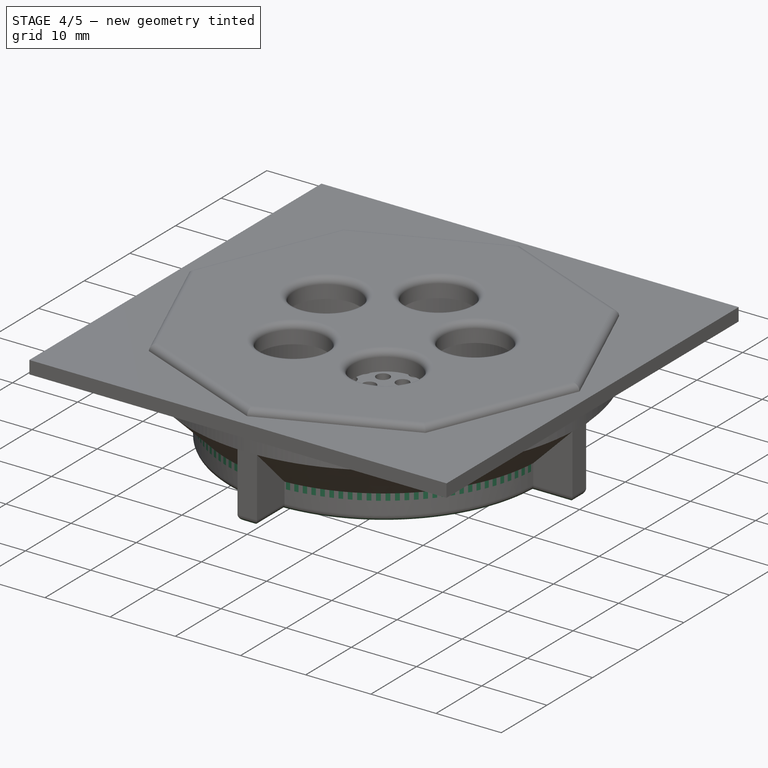
[diagram: stage 4 of 5 — iso view after this stage's code; geometry added in this stage tinted green]
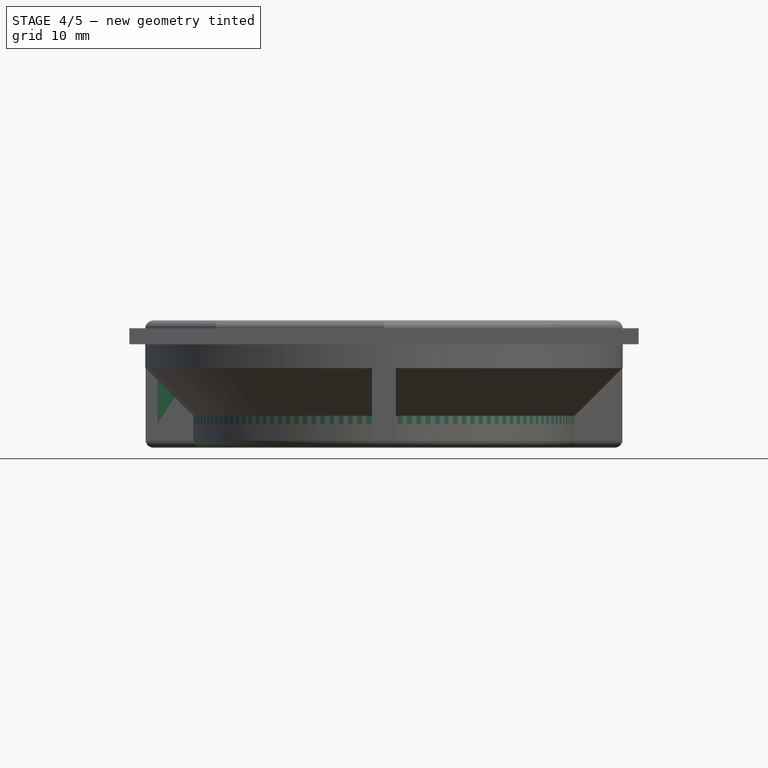
[diagram: stage 4 of 5 — front view after this stage's code; geometry added in this stage tinted green]
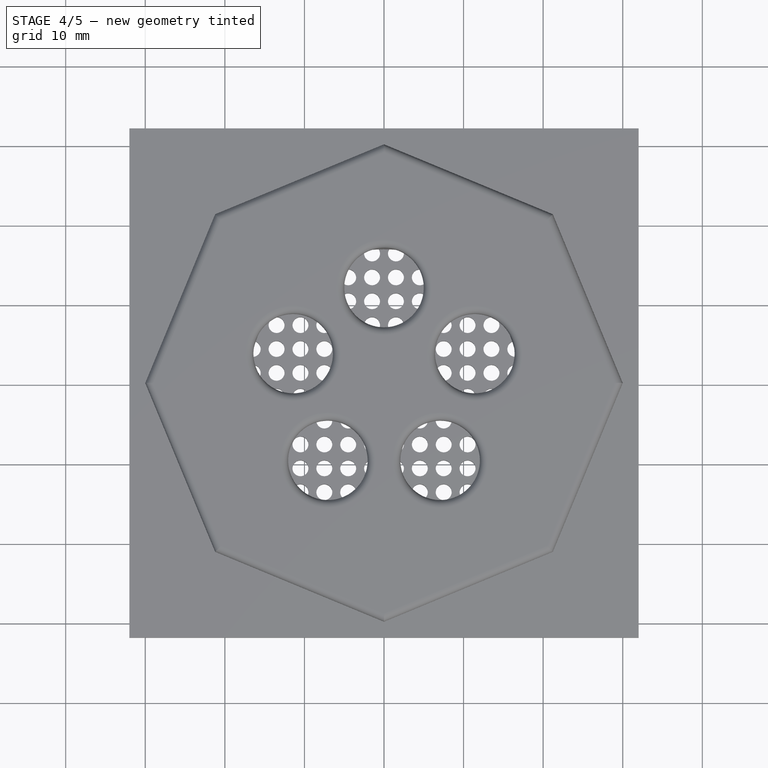
[diagram: stage 4 of 5 — top view after this stage's code; geometry added in this stage tinted green]
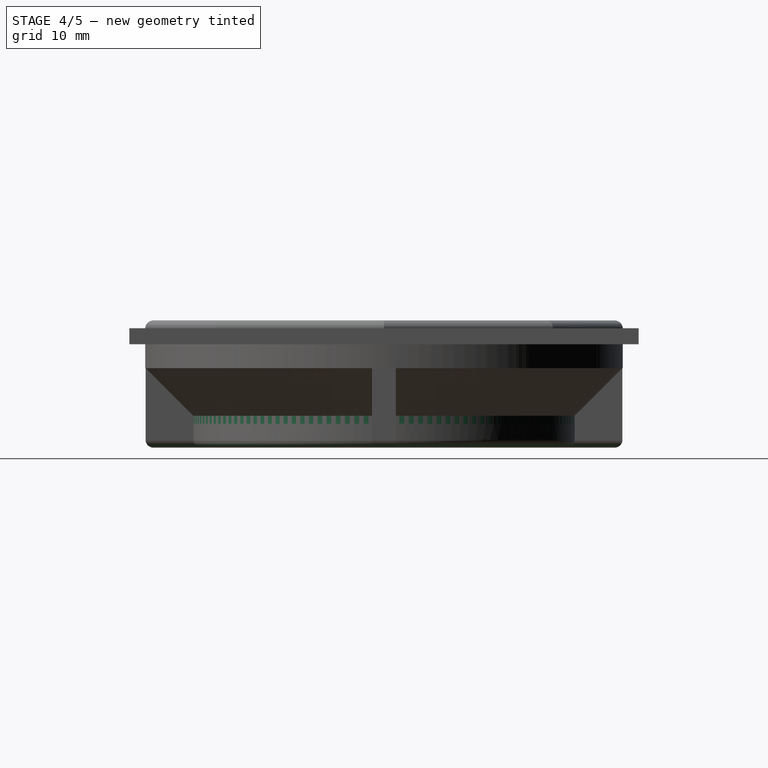
[diagram: stage 4 of 5 — right view after this stage's code; geometry added in this stage tinted green]
FEATURE [Sketcher::SketchObject] Sketch004
  ArcFitTolerance = 1e-06
  AttachmentSupport = -> [XY_Plane001]
  ExternalBSplineMaxDegree = 5
  ExternalBSplineTolerance = 0.0001
  FullyConstrained = true
  InternalTolerance = 1e-06
  InvalidShape = false
  MakeInternals = false
  MapMode = 5
  Support = -> [XY_Plane001]
  TreeRank = 33
  ValidateShape = true
  expr: Constraints[1] = <<Parameters>>.outer_diameter
  expr: Constraints[3] = <<Parameters>>.hole_diameter + 2
  sketch-geometry (2):
    g0: Circle CenterX=0 CenterY=0 CenterZ=0 NormalX=0 NormalY=0 NormalZ=1 AngleXU=0 Radius=30
    g1: Circle CenterX=0 CenterY=0 CenterZ=0 NormalX=0 NormalY=0 NormalZ=1 AngleXU=0 Radius=21
  constraints (4):
    c: Coincident(g0,g-1)
    c: Diameter(g0) = 60
    c: Coincident(g1,g0)
    c: Diameter(g1) = 42
FEATURE [PartDesign::Pad] Pad002
  AddSubType = 0
  AlongSketchNormal = false
  AutoTaperInnerAngle = true
  CheckUpToFaceLimits = true
  ClaimChildren = false
  Direction = (0,0,1)
  Fit = 0
  FitJoin = 0
  InnerFit = 0
  InnerFitJoin = 0
  InvalidShape = false
  Length = 3
  Length2 = 100
  Linearize = true
  NewSolid = false
  Profile = -> Sketch004
  Reversed = true
  Suppress = false
  TaperInnerAngle = 0
  TaperInnerAngleRev = 0
  TreeRank = 34
  Type = 0
  ValidateShape = true
  _ProfileBasedVersion = 1
  expr: Length = <<Parameters>>.thickness
FEATURE [Sketcher::SketchObject] Sketch005
  ArcFitTolerance = 1e-06
  AttachmentSupport = -> [XY_Plane001]
  ExternalBSplineMaxDegree = 5
  ExternalBSplineTolerance = 0.0001
  FullyConstrained = true
  InternalTolerance = 1e-06
  InvalidShape = false
  MakeInternals = false
  MapMode = 5
  Support = -> [XY_Plane001]
  TreeRank = 35
  ValidateShape = true
  expr: Constraints[2] = <<Parameters>>.hole_diameter + 2
  expr: Constraints[3] = <<Parameters>>.hole_diameter + 2 + <<Parameters>>.thickness * 2
  sketch-geometry (2):
    g0: Circle CenterX=0 CenterY=0 CenterZ=0 NormalX=0 NormalY=0 NormalZ=1 AngleXU=0 Radius=24
    g1: Circle CenterX=0 CenterY=0 CenterZ=0 NormalX=0 NormalY=0 NormalZ=1 AngleXU=0 Radius=21
  constraints (4):
    c: Coincident(g0,g-1)
    c: Coincident(g1,g0)
    c: Diameter(g1) = 42
    c: Diameter(g0) = 48
FEATURE [PartDesign::Pad] Pad003
  AddSubType = 0
  AlongSketchNormal = false
  AutoTaperInnerAngle = true
  BaseFeature = -> Pad002
  CheckUpToFaceLimits = true
  ClaimChildren = false
  Direction = (0,0,1)
  Fit = 0
  FitJoin = 0
  InnerFit = 0
  InnerFitJoin = 0
  InvalidShape = false
  Length = 10
  Length2 = 100
  Linearize = true
  NewSolid = false
  Profile = -> Sketch005
  Reversed = true
  Suppress = false
  TaperInnerAngle = 0
  TaperInnerAngleRev = 0
  TreeRank = 36
  Type = 0
  ValidateShape = true
  _ProfileBasedVersion = 1
  expr: Length = <<Parameters>>.overlap
FEATURE [Sketcher::SketchObject] Sketch006
  ArcFitTolerance = 1e-06
  AttachmentSupport = -> [XZ_Plane001]
  ExternalBSplineMaxDegree = 5
  ExternalBSplineTolerance = 0.0001
  FullyConstrained = true
  InternalTolerance = 1e-06
  InvalidShape = false
  MakeInternals = false
  MapMode = 5
  Placement = pos=(0,0,0) rot=(1,0,0;1.5708rad)
  Support = -> [XZ_Plane001]
  TreeRank = 37
  ValidateShape = true
  expr: Constraints[10] = (<<Parameters>>.hole_diameter + 2) / 2
  expr: Constraints[7] = <<Parameters>>.thread_pitch / 2.1
  expr: Constraints[8] = <<Parameters>>.thread_depth
  expr: Constraints[9] = 90 - <<Parameters>>.thread_angle
  sketch-geometry (4):
    g0: LineSegment StartX=-21 StartY=0 StartZ=0 EndX=-21 EndY=-1.90476 EndZ=0
    g1: LineSegment StartX=-21 StartY=0 StartZ=0 EndX=-19.5 EndY=-0.699461 EndZ=0
    g2: LineSegment StartX=-21 StartY=-1.90476 StartZ=0 EndX=-19.5 EndY=-1.2053 EndZ=0
    g3: LineSegment StartX=-19.5 StartY=-1.2053 StartZ=0 EndX=-19.5 EndY=-0.699461 EndZ=0
  constraints (12):
    c: Vertical(g0)
    c: Coincident(g1,g0)
    c: Coincident(g2,g0)
    c: Coincident(g3,g2)
    c: Coincident(g3,g1)
    c: Vertical(g3)
    c: Equal(g1,g2)
    c: DistanceY(g0,g0) = 1.90476
    c: DistanceX(g0,g1) = 1.5
    c: Angle(g0,g1) = 1.13446
    c: DistanceX(g0,g-1) = 21
    c: DistanceY(g0,g-1) = 0
FEATURE [PartDesign::AdditiveHelix] Helix001
  AddSubType = 0
  Angle = 0
  Axis = (0,2e-16,1)
  Base = (0,0,0)
  BaseFeature = -> Pad003
  ClaimChildren = false
  Fit = 0
  FitJoin = 0
  Growth = 0
  HasBeenEdited = true
  Height = 8
  InnerFit = 0
  InnerFitJoin = 0
  InvalidShape = false
  LeftHanded = false
  Linearize = true
  Mode = 0
  NewSolid = false
  Outside = false
  Pitch = 4
  Profile = -> Sketch006
  ReferenceAxis = -> Sketch006 [V_Axis]
  Reversed = true
  Suppress = false
  TreeRank = 38
  Turns = 2
  ValidateShape = true
  _ProfileBasedVersion = 1
  expr: Height = <<Parameters>>.overlap - <<Parameters>>.thread_pitch / 2
  expr: Pitch = <<Parameters>>.thread_pitch
FEATURE [Sketcher::SketchObject] Sketch007
  ArcFitTolerance = 1e-06
  AttachmentSupport = -> [XY_Plane001]
  ExternalBSplineMaxDegree = 5
  ExternalBSplineTolerance = 0.0001
  FullyConstrained = true
  InternalTolerance = 1e-06
  InvalidShape = false
  MakeInternals = false
  MapMode = 5
  Support = -> [XY_Plane001]
  TreeRank = 39
  ValidateShape = true
  expr: Constraints[17] = <<Parameters>>.thickness
  expr: Constraints[1] = <<Parameters>>.hole_diameter + 2
  expr: Constraints[3] = <<Parameters>>.outer_diameter - <<Parameters>>.thickness
  sketch-geometry (6):
    g0: Circle [constr] CenterX=0 CenterY=0 CenterZ=0 NormalX=0 NormalY=0 NormalZ=1 AngleXU=0 Radius=21
    g1: Circle [constr] CenterX=0 CenterY=0 CenterZ=0 NormalX=0 NormalY=0 NormalZ=1 AngleXU=0 Radius=28.5
    g2: LineSegment StartX=-20.9464 StartY=1.5 StartZ=0 EndX=-28.4605 EndY=1.5 EndZ=0
    g3: LineSegment StartX=-20.9464 StartY=-1.5 StartZ=0 EndX=-28.4605 EndY=-1.5 EndZ=0
    g4: LineSegment StartX=-20.9464 StartY=1.5 StartZ=0 EndX=-20.9464 EndY=-1.5 EndZ=0
    g5: LineSegment StartX=-28.4605 StartY=1.5 StartZ=0 EndX=-28.4605 EndY=-1.5 EndZ=0
  constraints (18):
    c: Coincident(g0,g-1)
    c: Diameter(g0) = 42
    c: Coincident(g1,g0)
    c: Diameter(g1) = 57
    c: PointOnObject(g2,g0)
    c: PointOnObject(g2,g1)
    c: Horizontal(g2)
    c: PointOnObject(g3,g0)
    c: PointOnObject(g3,g1)
    c: Horizontal(g3)
    c: Equal(g2,g3)
    c: Symmetric(g3,g2,g-1)
    c: Coincident(g4,g2)
    c: Coincident(g4,g3)
    c: Vertical(g4)
    c: Coincident(g5,g2)
    c: Coincident(g5,g3)
    c: DistanceY(g3,g2) = 3
FEATURE [PartDesign::Pad] Pad004
  AddSubType = 0
  AlongSketchNormal = false
  AutoTaperInnerAngle = true
  BaseFeature = -> Helix001
  CheckUpToFaceLimits = true
  ClaimChildren = false
  Direction = (0,0,1)
  Fit = 0
  FitJoin = 0
  InnerFit = 0
  InnerFitJoin = 0
  InvalidShape = false
  Length = 10
  Length2 = 100
  Linearize = true
  NewSolid = false
  Profile = -> Sketch007
  Reversed = true
  Suppress = false
  TaperInnerAngle = 0
  TaperInnerAngleRev = 0
  TreeRank = 40
  Type = 0
  ValidateShape = true
  _ProfileBasedVersion = 1
  expr: Length = <<Parameters>>.overlap
FEATURE [PartDesign::Fillet] Fillet004
  AddSubType = 0
  Base = -> Chamfer [Edge38,Edge37,Edge55,Edge592,Edge591,Edge17,Edge20,Edge584,Edge48,Edge580,Edge579,Edge577,Edge41,Edge24,Edge8,Edge23]
  BaseFeature = -> Chamfer
  InvalidShape = false
  NewSolid = false
  Radius = 1
  SupportTransform = false
  Suppress = false
  TreeRank = 70
  ValidateShape = true
FEATURE [PartDesign::Fillet] Fillet005
  AddSubType = 0
  Base = -> Fillet004 [Face19]
  BaseFeature = -> Fillet004
  InvalidShape = false
  NewSolid = false
  Radius = 0.3
  SupportTransform = false
  Suppress = false
  TreeRank = 71
  ValidateShape = true
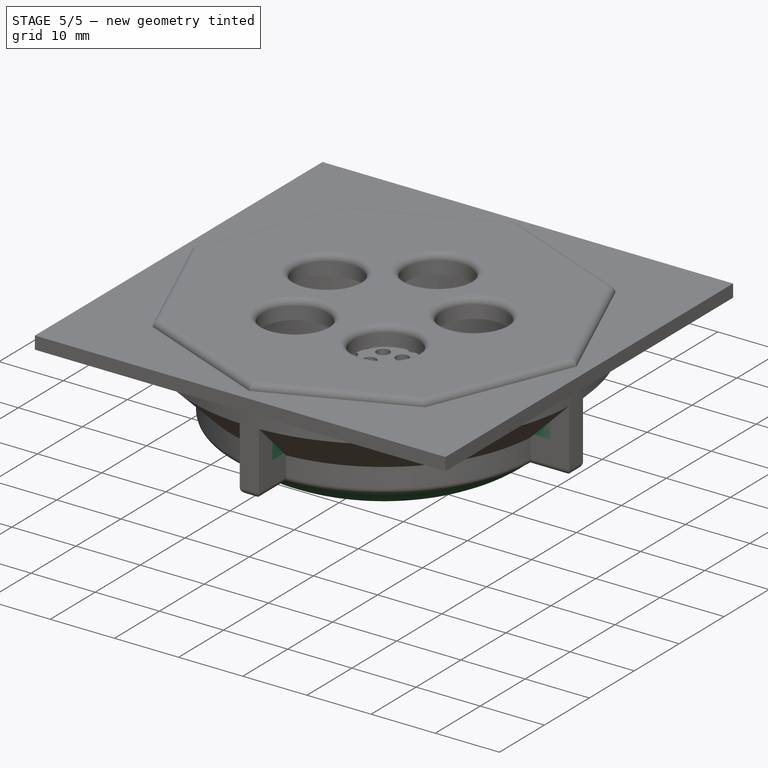
[diagram: stage 5 of 5 — iso view after this stage's code; geometry added in this stage tinted green]
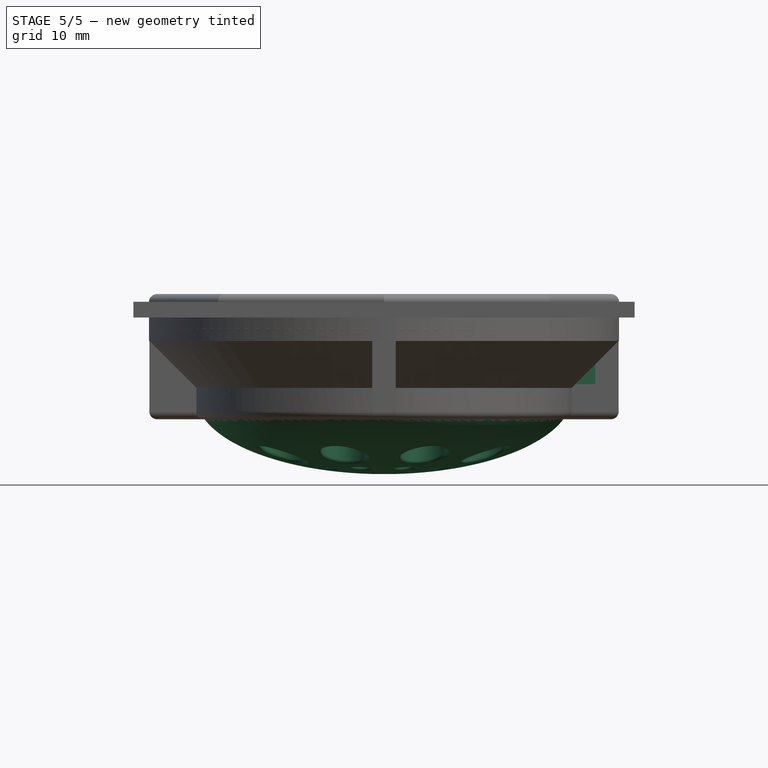
[diagram: stage 5 of 5 — front view after this stage's code; geometry added in this stage tinted green]
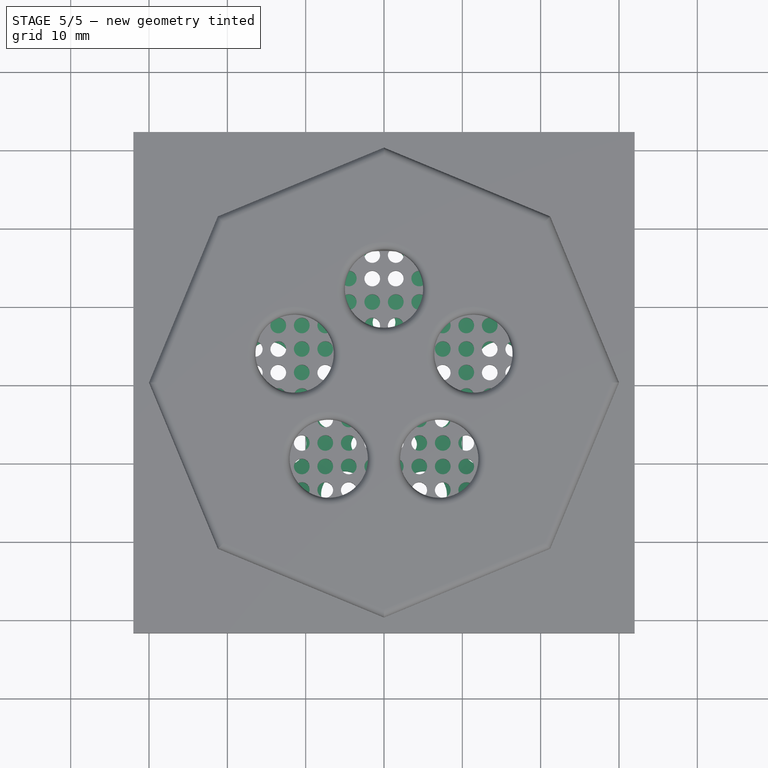
[diagram: stage 5 of 5 — top view after this stage's code; geometry added in this stage tinted green]
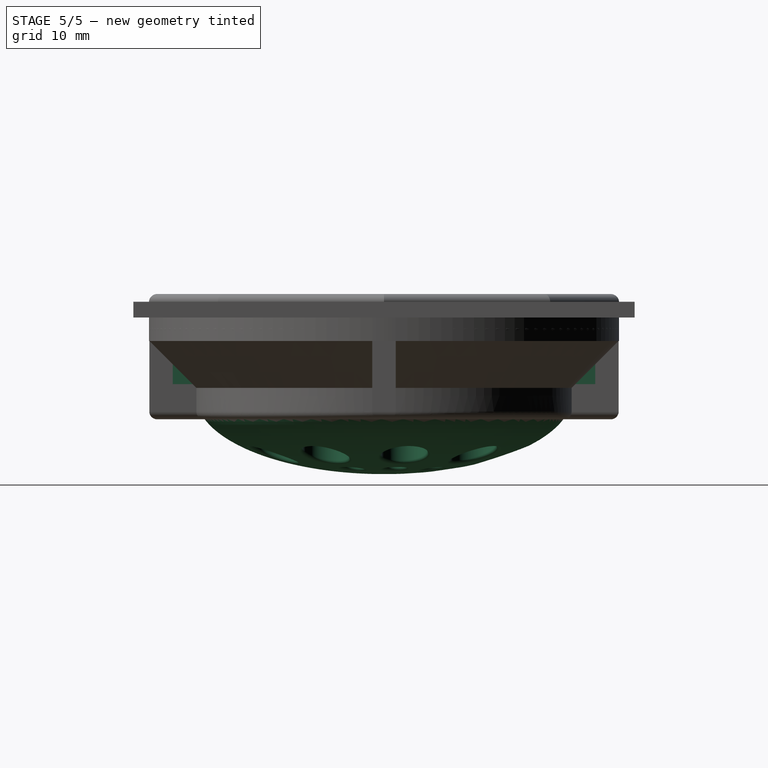
[diagram: stage 5 of 5 — right view after this stage's code; geometry added in this stage tinted green]
FEATURE [PartDesign::PolarPattern] PolarPattern001
  AddSubType = 0
  Angle = 360
  Axis = -> Sketch007 [N_Axis]
  BaseFeature = -> Pad004
  CopyShape = false
  InvalidShape = false
  NewSolid = false
  Occurrences = 4
  OriginalSubs = -> [Pad004]
  Originals = -> [Pad004]
  ParallelTransform = true
  SubTransform = true
  Suppress = false
  TreeRank = 41
  ValidateShape = true
  _Version = 3
FEATURE [PartDesign::Fillet] Fillet002
  AddSubType = 0
  Base = -> PolarPattern001 [Edge2,Edge3,Edge64,Edge66,Edge67,Edge65,Edge68,Edge60,Edge57,Edge59,Edge58,Edge56,Edge83,Edge84,Edge81,Edge82,Edge80,Edge75,Edge73,Edge76,Edge74,Edge72]
  BaseFeature = -> PolarPattern001
  InvalidShape = false
  NewSolid = false
  Radius = 1.49
  SupportTransform = false
  Suppress = false
  TreeRank = 42
  ValidateShape = true
  expr: Radius = <<Parameters>>.thickness / 2 - 0.01
FEATURE [Sketcher::SketchObject] Sketch008
  ArcFitTolerance = 1e-06
  AttachmentSupport = -> [XZ_Plane001]
  ExternalBSplineMaxDegree = 5
  ExternalBSplineTolerance = 0.0001
  FullyConstrained = false
  InternalTolerance = 1e-06
  InvalidShape = false
  MakeInternals = false
  MapMode = 5
  Placement = pos=(0,0,0) rot=(1,0,0;1.5708rad)
  Support = -> [XZ_Plane001]
  TreeRank = 43
  ValidateShape = true
  expr: Constraints[6] = <<Parameters>>.overlap
  expr: Constraints[7] = <<Parameters>>.overlap
  expr: Constraints[8] = <<Parameters>>.hole_diameter + 2 + <<Parameters>>.thickness * 2
  sketch-geometry (8):
    g0: ArcOfEllipse CenterX=0 CenterY=-10 CenterZ=0 NormalX=0 NormalY=0 NormalZ=1 MajorRadius=24 MinorRadius=10 AngleXU=-3.14159 StartAngle=0 EndAngle=1.5708
    g1: LineSegment [constr] StartX=-24 StartY=-10 StartZ=0 EndX=24 EndY=-10 EndZ=0
    g2: LineSegment [constr] StartX=2e-16 StartY=-20 StartZ=0 EndX=-2e-16 EndY=0 EndZ=0
    g3: GeomPoint [constr] X=-21.8174 Y=-10 Z=0
    g4: GeomPoint [constr] X=21.8174 Y=-10 Z=0
    g5: ArcOfEllipse CenterX=0 CenterY=-10 CenterZ=0 NormalX=0 NormalY=0 NormalZ=1 MajorRadius=20.994 MinorRadius=6.99532 AngleXU=0.000683212 StartAngle=3.13954 EndAngle=4.71216
    g6: LineSegment StartX=-24 StartY=-10 StartZ=0 EndX=-20.9939 EndY=-10 EndZ=0
    g7: LineSegment StartX=2e-16 StartY=-20 StartZ=0 EndX=2e-16 EndY=-16.9953 EndZ=0
  constraints (17):
    c: InternalAlignment(g1-g4 -> g0) x4
    c: PointOnObject(g0,g-2)
    c: Horizontal(g1)
    c: DistanceY(g0,g-1) = 10
    c: DistanceY(g2,g0) = 10
    c: DistanceX(g1,g1) = 48
    c: Coincident(g5,g0)
    c: Coincident(g6,g1)
    c: PointOnObject(g6,g5)
    c: PointOnObject(g6,g1)
    c: Coincident(g7,g2)
    c: PointOnObject(g7,g5)
    c: PointOnObject(g7,g2)
    c: Coincident(g0,g1)
    c: PointOnObject(g5,g1)
    c: PointOnObject(g5,g2)
    c: PointOnObject(g0,g2)
FEATURE [PartDesign::Revolution] Revolution
  AddSubType = 0
  Angle = 360
  Axis = (0,-2e-16,1)
  Base = (0,0,0)
  BaseFeature = -> Fillet002
  ClaimChildren = false
  Fit = 0
  FitJoin = 0
  InnerFit = 0
  InnerFitJoin = 0
  InvalidShape = false
  Linearize = true
  NewSolid = false
  Profile = -> Sketch008
  ReferenceAxis = -> Sketch008 [V_Axis]
  Suppress = false
  TreeRank = 44
  ValidateShape = true
  _ProfileBasedVersion = 1
FEATURE [Sketcher::SketchObject] Sketch009
  ArcFitTolerance = 1e-06
  AttachmentSupport = -> [XY_Plane001]
  ExternalBSplineMaxDegree = 5
  ExternalBSplineTolerance = 0.0001
  FullyConstrained = false
  InternalTolerance = 1e-06
  InvalidShape = false
  MakeInternals = false
  MapMode = 5
  Support = -> [XY_Plane001]
  TreeRank = 45
  ValidateShape = true
  expr: Constraints[1] = <<Parameters>>.hole_diameter + 2 - <<Parameters>>.thread_depth - 1
  sketch-geometry (5):
    g0: Circle [constr] CenterX=0 CenterY=0 CenterZ=0 NormalX=0 NormalY=0 NormalZ=1 AngleXU=0 Radius=19.75
    g1: Circle CenterX=0 CenterY=14.847 CenterZ=0 NormalX=0 NormalY=0 NormalZ=1 AngleXU=0 Radius=2.94897
    g2: Circle CenterX=0 CenterY=8.03157 CenterZ=0 NormalX=0 NormalY=0 NormalZ=1 AngleXU=0 Radius=1.4496
    g3: Circle CenterX=0 CenterY=3.61536 CenterZ=0 NormalX=0 NormalY=0 NormalZ=1 AngleXU=0 Radius=0.650075
    g4: Circle CenterX=0 CenterY=0 CenterZ=0 NormalX=0 NormalY=0 NormalZ=1 AngleXU=0 Radius=0.633102
  constraints (6):
    c: Coincident(g0,g-1)
    c: Diameter(g0) = 39.5
    c: PointOnObject(g1,g-2)
    c: PointOnObject(g2,g-2)
    c: PointOnObject(g3,g-2)
    c: PointOnObject(g4,g-2)
FEATURE [PartDesign::Pocket] Pocket001
  AddSubType = 1
  AutoTaperInnerAngle = true
  BaseFeature = -> Revolution
  CheckUpToFaceLimits = true
  ClaimChildren = false
  Fit = 0
  FitJoin = 0
  InnerFit = 0
  InnerFitJoin = 0
  InvalidShape = false
  Length = 100
  Length2 = 100
  Linearize = true
  NewSolid = false
  Profile = -> Sketch009
  Suppress = false
  TaperInnerAngle = 0
  TaperInnerAngleRev = 0
  TreeRank = 46
  Type = 4
  ValidateShape = true
  _ProfileBasedVersion = 1
  _Version = 1
FEATURE [PartDesign::PolarPattern] PolarPattern002
  AddSubType = 0
  Angle = 360
  Axis = -> Sketch009 [N_Axis]
  BaseFeature = -> Pocket001
  CopyShape = false
  InvalidShape = false
  NewSolid = false
  Occurrences = 9
  OriginalSubs = -> [Pocket001]
  Originals = -> [Pocket001]
  ParallelTransform = true
  SubTransform = true
  Suppress = false
  TreeRank = 47
  ValidateShape = true
  _Version = 3
FEATURE [PartDesign::Fillet] Fillet003
  AddSubType = 0
  Base = -> PolarPattern002 [Edge201,Edge200,Edge197,Edge203,Edge225,Edge234,Edge232,Edge224,Edge222,Edge211,Edge195,Edge230,Edge220,Edge218,Edge216,Edge214,Edge182,Edge235,Edge176,Edge184,Edge227,Edge207,Edge209,Edge205,Edge186,Edge191,Edge189,Edge193]
  BaseFeature = -> PolarPattern002
  InvalidShape = false
  NewSolid = false
  Radius = 0.5
  SupportTransform = false
  Suppress = false
  TreeRank = 48
  ValidateShape = true
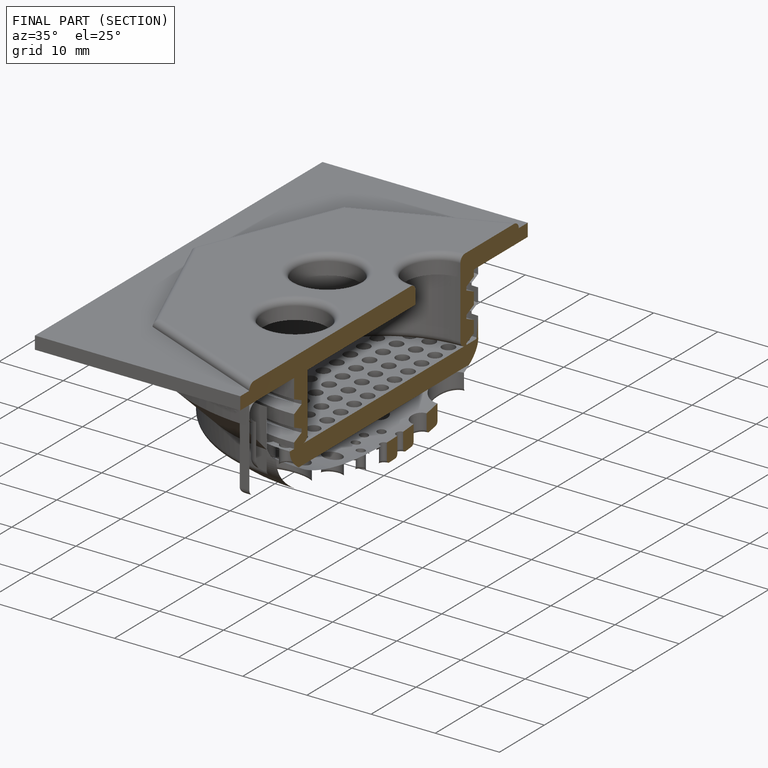
[diagram: finished part — half-section view (interior)]
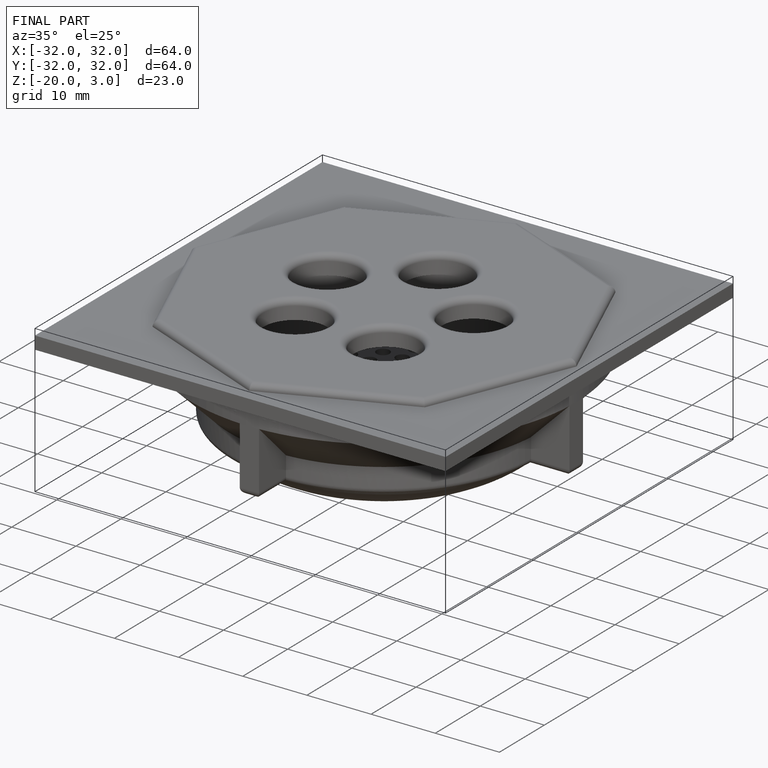
[diagram: finished part — iso view with bounding-box wireframe]
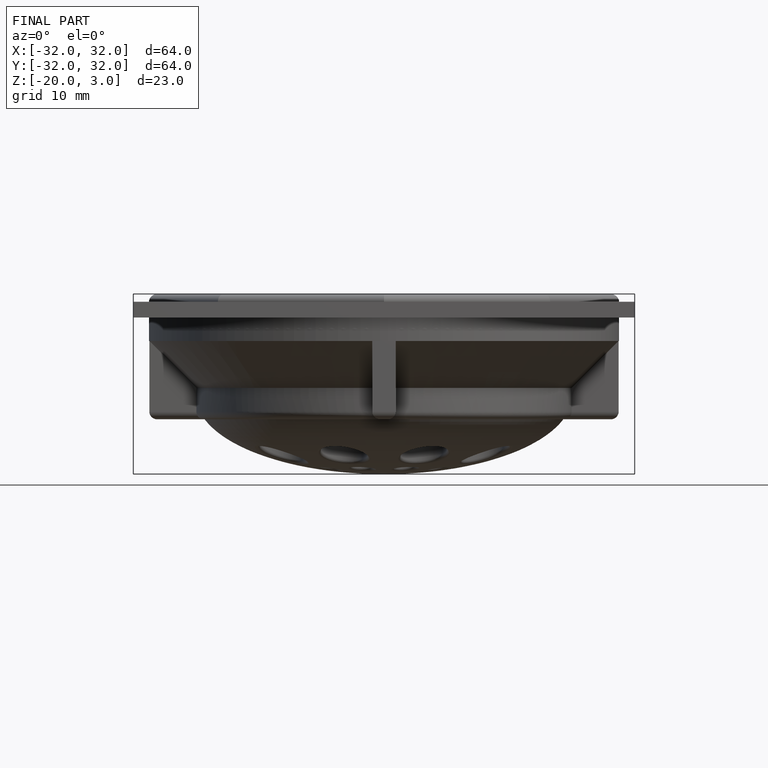
[diagram: finished part — front view with bounding-box wireframe]
